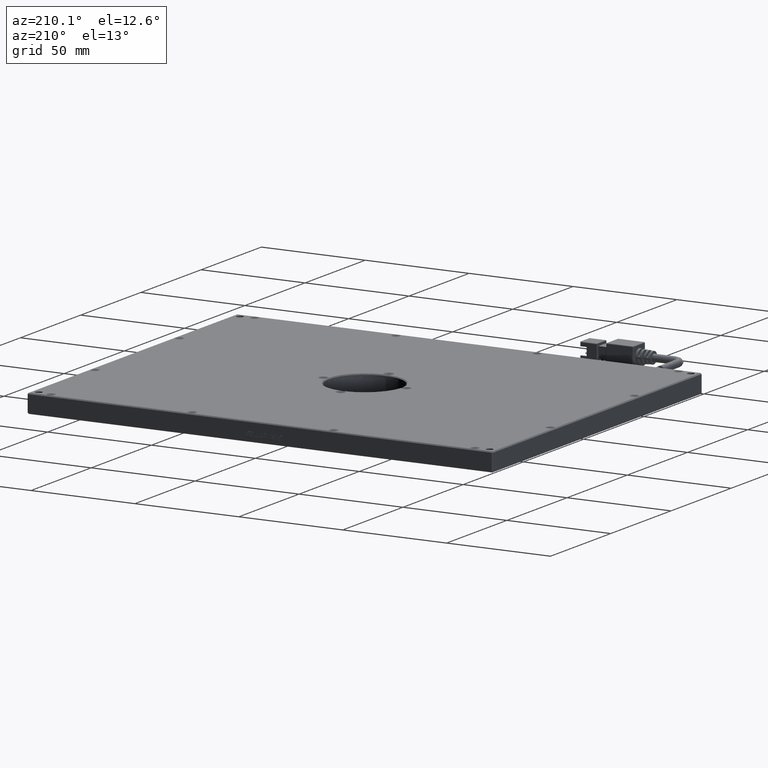
[diagram: clean part render]
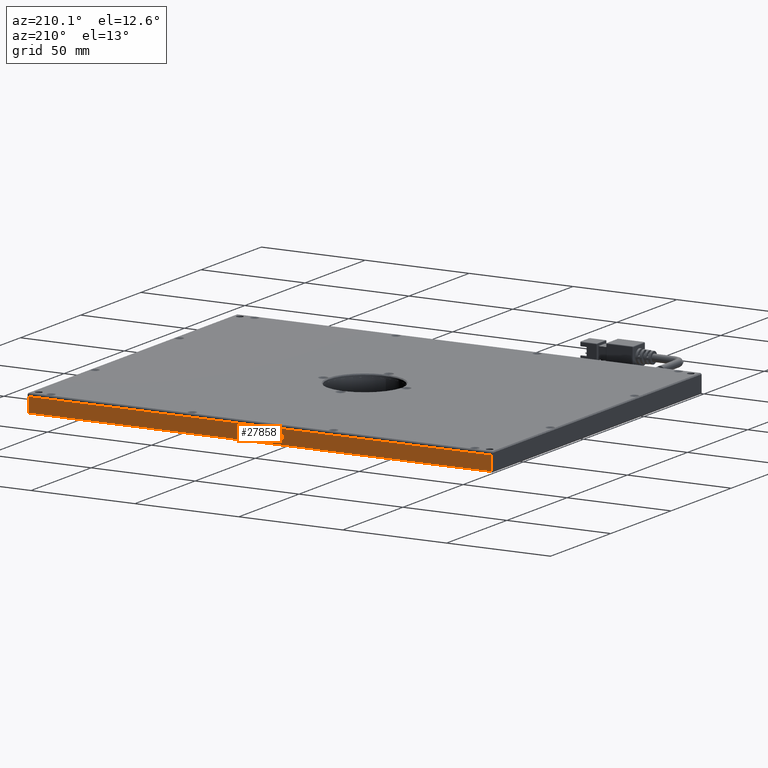
[diagram: same view with one face highlighted and labeled with its STEP entity id]
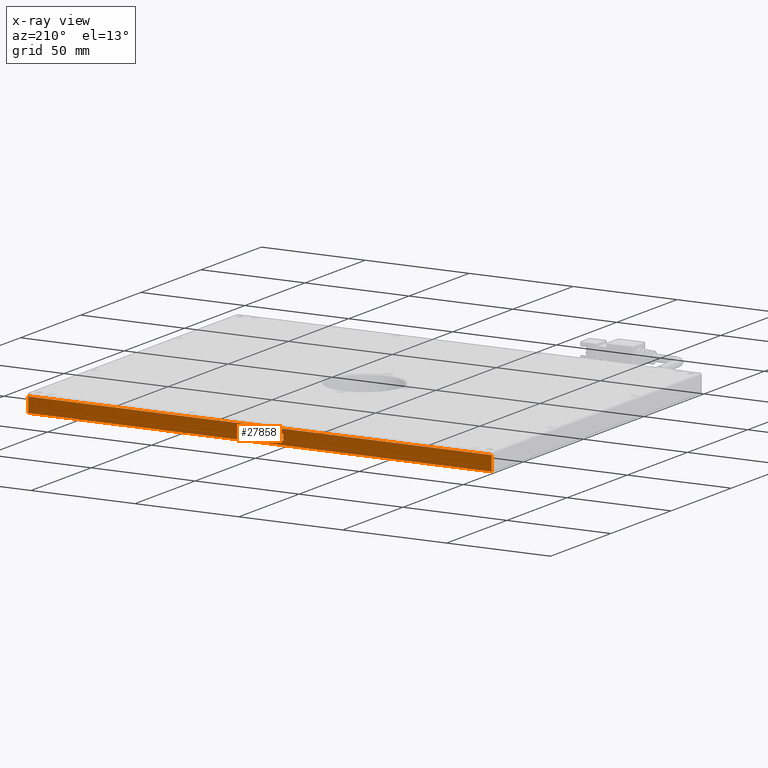
[diagram: x-ray of the same camera — body ghosted, the highlighted face saturated]
A machine part, auxiliary view. The second image highlights one B-rep face of the part: STEP entity #27858.
The next image is the same camera in x-ray: the body ghosted, the highlighted face saturated — about 0% of this face is hidden behind the body in this view.
In plain terms, the highlighted planar face has unit normal (0, -1, 0).
Its self-contained STEP definition (entity closure, byte-faithful):
#32 = ORIENTED_EDGE ( 'NONE', *, *, #49104, .F. ) ;
#81 = CARTESIAN_POINT ( 'NONE',  ( 8.478474851270956200, 92.19253164556964500, 0.5238957003299250500 ) ) ;
#99 = DIRECTION ( 'NONE',  ( -0.0000000000000000000, -0.0000000000000000000, 1.000000000000000000 ) ) ;
#148 = VERTEX_POINT ( 'NONE', #9354 ) ;
#374 = B_SPLINE_CURVE_WITH_KNOTS ( 'NONE', 3,
 ( #5275, #12519, #9017, #4780 ),
 .UNSPECIFIED., .F., .F.,
 ( 4, 4 ),
 ( 5.000000000000000000, 6.000000000000000000 ),
 .UNSPECIFIED. ) ;
#385 = VECTOR ( 'NONE', #2928, 1000.000000000000000 ) ;
#642 = EDGE_CURVE ( 'NONE', #46758, #26991, #10664, .T. ) ;
#790 = ORIENTED_EDGE ( 'NONE', *, *, #44181, .F. ) ;
#830 = ORIENTED_EDGE ( 'NONE', *, *, #47695, .F. ) ;
#935 = ORIENTED_EDGE ( 'NONE', *, *, #5352, .F. ) ;
#947 = VERTEX_POINT ( 'NONE', #26903 ) ;
#1024 = CARTESIAN_POINT ( 'NONE',  ( -2.218712817739332300, 92.19253164556964500, 0.6634305840508654100 ) ) ;
#1029 = CARTESIAN_POINT ( 'NONE',  ( -6.567792430414609600, 92.19253164556964500, 1.506495181387633300 ) ) ;
#1091 = EDGE_CURVE ( 'NONE', #20305, #45094, #3220, .T. ) ;
#1308 = CARTESIAN_POINT ( 'NONE',  ( 8.096646836127707300, 92.19253164556964500, -0.6854066252514655600 ) ) ;
#1559 = EDGE_CURVE ( 'NONE', #11655, #34055, #29220, .T. ) ;
#1579 = CARTESIAN_POINT ( 'NONE',  ( 5.415143320713856000, 92.19253164556964500, 0.05877942126015969100 ) ) ;
#1603 = CARTESIAN_POINT ( 'NONE',  ( 8.087993510005386400, 92.19253164556964500, -0.9737787182747225100 ) ) ;
#1678 = VECTOR ( 'NONE', #33443, 1000.000000000000000 ) ;
#1759 = VECTOR ( 'NONE', #31230, 1000.000000000000000 ) ;
#1848 = AXIS2_PLACEMENT_3D ( 'NONE', #23793, #12338, #19747 ) ;
#1900 = CARTESIAN_POINT ( 'NONE',  ( -4.272579772850226800, 92.19253164556964500, -0.5923833694375076900 ) ) ;
#2258 = CARTESIAN_POINT ( 'NONE',  ( -4.590643591130316300, 92.19253164556964500, 1.091337560795046200 ) ) ;
#2290 = DIRECTION ( 'NONE',  ( 1.000000000000000000, -0.0000000000000000000, -0.0000000000000000000 ) ) ;
#2466 = CARTESIAN_POINT ( 'NONE',  ( 6.326338561384536900, 92.19253164556964500, 1.091337560795046200 ) ) ;
#2478 = ORIENTED_EDGE ( 'NONE', *, *, #21874, .F. ) ;
#2522 = EDGE_CURVE ( 'NONE', #39317, #49320, #10991, .T. ) ;
#2541 = CARTESIAN_POINT ( 'NONE',  ( -0.9285559762033379600, 92.19253164556964500, 0.06808174684155757200 ) ) ;
#2593 = EDGE_CURVE ( 'NONE', #36190, #22194, #26751, .T. ) ;
#2603 = VERTEX_POINT ( 'NONE', #30244 ) ;
#2699 = CARTESIAN_POINT ( 'NONE',  ( -0.9285559762033379600, 92.19253164556964500, 0.06808174684155757200 ) ) ;
#2704 = VERTEX_POINT ( 'NONE', #26885 ) ;
#2734 = CARTESIAN_POINT ( 'NONE',  ( 4.764250946457549300, 92.19253164556964500, 1.054128258469461600 ) ) ;
#2854 = DIRECTION ( 'NONE',  ( -0.0000000000000000000, -0.0000000000000000000, -1.000000000000000000 ) ) ;
#2868 = DIRECTION ( 'NONE',  ( -0.0000000000000000000, -0.0000000000000000000, 1.000000000000000000 ) ) ;
#2899 = CARTESIAN_POINT ( 'NONE',  ( 8.851649540292051200, 92.19253164556964500, -0.3505229043212357800 ) ) ;
#2914 = VERTEX_POINT ( 'NONE', #31253 ) ;
#2928 = DIRECTION ( 'NONE',  ( 1.000000000000000000, -0.0000000000000000000, -0.0000000000000000000 ) ) ;
#2961 = DIRECTION ( 'NONE',  ( -0.0000000000000000000, -0.0000000000000000000, -1.000000000000000000 ) ) ;
#3028 = CARTESIAN_POINT ( 'NONE',  ( 5.415143320713856000, 92.19253164556964500, 0.05877942126015969100 ) ) ;
#3099 = VERTEX_POINT ( 'NONE', #2466 ) ;
#3174 = ORIENTED_EDGE ( 'NONE', *, *, #7609, .F. ) ;
#3177 = EDGE_CURVE ( 'NONE', #34457, #8996, #31439, .T. ) ;
#3220 = B_SPLINE_CURVE_WITH_KNOTS ( 'NONE', 3,
 ( #28874, #28710, #9586, #40857 ),
 .UNSPECIFIED., .F., .F.,
 ( 4, 4 ),
 ( 11.00000000000000000, 12.00000000000000000 ),
 .UNSPECIFIED. ) ;
#3318 = VECTOR ( 'NONE', #35313, 1000.000000000000000 ) ;
#3348 = CARTESIAN_POINT ( 'NONE',  ( -4.182801514332146200, 92.19253164556964500, -0.9737787182747225100 ) ) ;
#3365 = CARTESIAN_POINT ( 'NONE',  ( 6.421795565170418400, 92.19253164556964500, 0.8215701189345876500 ) ) ;
#3370 = FACE_BOUND ( 'NONE', #27323, .T. ) ;
#3397 = CARTESIAN_POINT ( 'NONE',  ( 7.908599242833935800, 92.19253164556964500, -0.1737787182747177700 ) ) ;
#3463 = CARTESIAN_POINT ( 'NONE',  ( -1.813683071930805000, 92.19253164556964500, -0.9458717415305357700 ) ) ;
#3473 = DIRECTION ( 'NONE',  ( -1.000000000000000000, -0.0000000000000000000, 0.0000000000000000000 ) ) ;
#3507 = CARTESIAN_POINT ( 'NONE',  ( 8.472633856138500600, 92.19253164556964500, 0.7285468631206296600 ) ) ;
#3522 = VECTOR ( 'NONE', #10950, 1000.000000000000000 ) ;
#3600 = CARTESIAN_POINT ( 'NONE',  ( -3.766252028123362500, 92.19253164556964500, -0.09936011362356253500 ) ) ;
#3608 = EDGE_CURVE ( 'NONE', #48546, #27872, #38408, .T. ) ;
#3609 = EDGE_CURVE ( 'NONE', #17077, #28659, #14487, .T. ) ;
#3611 = DIRECTION ( 'NONE',  ( -1.000000000000000000, -0.0000000000000000000, -0.0000000000000000000 ) ) ;
#3657 = CARTESIAN_POINT ( 'NONE',  ( 7.804434829637663100, 92.19253164556964500, -0.5984947810113378000 ) ) ;
#3661 = CARTESIAN_POINT ( 'NONE',  ( -6.567792430414609600, 92.19253164556964500, 1.506495181387633300 ) ) ;
#3739 = ORIENTED_EDGE ( 'NONE', *, *, #9049, .F. ) ;
#3814 = VECTOR ( 'NONE', #44176, 1000.000000000000000 ) ;
#3887 = B_SPLINE_CURVE_WITH_KNOTS ( 'NONE', 3,
 ( #7494, #4145, #12040, #15595 ),
 .UNSPECIFIED., .F., .F.,
 ( 4, 4 ),
 ( 4.000000000000000000, 5.000000000000000000 ),
 .UNSPECIFIED. ) ;
#3893 = CARTESIAN_POINT ( 'NONE',  ( 3.905137912385059400, 92.19253164556964500, -0.6668019740886768100 ) ) ;
#3913 = ORIENTED_EDGE ( 'NONE', *, *, #38065, .F. ) ;
#3921 = CARTESIAN_POINT ( 'NONE',  ( 8.649053542455320100, 92.19253164556964500, -0.03105292054621320400 ) ) ;
#3950 = DIRECTION ( 'NONE',  ( 1.000000000000000000, -0.0000000000000000000, -0.0000000000000000000 ) ) ;
#3986 = VECTOR ( 'NONE', #2868, 1000.000000000000000 ) ;
#4106 = DIRECTION ( 'NONE',  ( -0.0000000000000000000, -0.0000000000000000000, 1.000000000000000000 ) ) ;
#4145 = CARTESIAN_POINT ( 'NONE',  ( 7.344510546241189700, 92.19253164556964500, -0.09005778804216466000 ) ) ;
#4170 = CARTESIAN_POINT ( 'NONE',  ( 8.903731746890187500, 92.19253164556964500, 0.4959887235857453100 ) ) ;
#4231 = EDGE_CURVE ( 'NONE', #37408, #5479, #26097, .T. ) ;
#4271 = DIRECTION ( 'NONE',  ( -1.000000000000000000, -0.0000000000000000000, -0.0000000000000000000 ) ) ;
#4299 = LINE ( 'NONE', #19397, #46449 ) ;
#4329 = CARTESIAN_POINT ( 'NONE',  ( 7.801622498647908800, 92.19253164556964500, 0.8247610329421484200 ) ) ;
#4422 = CARTESIAN_POINT ( 'NONE',  ( -4.581990265008162300, 92.19253164556964500, 0.8215701189345876500 ) ) ;
#4430 = CARTESIAN_POINT ( 'NONE',  ( 0.0000000000000000000, 92.19253164556964500, 1.091337560795046200 ) ) ;
#4709 = LINE ( 'NONE', #32553, #39630 ) ;
#4722 = CARTESIAN_POINT ( 'NONE',  ( 6.326338561384536900, 92.19253164556964500, 1.091337560795046200 ) ) ;
#4780 = CARTESIAN_POINT ( 'NONE',  ( 7.385073012439180600, 92.19253164556964500, -0.4249415089723944700 ) ) ;
#4861 = CARTESIAN_POINT ( 'NONE',  ( -2.938994050838306100, 92.19253164556964500, 0.8215701189345876500 ) ) ;
#5065 = CARTESIAN_POINT ( 'NONE',  ( 8.140021633315342300, 92.19253164556964500, 1.091337560795046200 ) ) ;
#5226 = CARTESIAN_POINT ( 'NONE',  ( -6.024010237157762400, 92.19253164556964500, 1.321615754439154200 ) ) ;
#5275 = CARTESIAN_POINT ( 'NONE',  ( 8.087993510005386400, 92.19253164556964500, -0.9737787182747225100 ) ) ;
#5352 = EDGE_CURVE ( 'NONE', #17165, #21293, #47219, .T. ) ;
#5402 = EDGE_CURVE ( 'NONE', #20635, #35526, #48408, .T. ) ;
#5479 = VERTEX_POINT ( 'NONE', #21359 ) ;
#5502 = CARTESIAN_POINT ( 'NONE',  ( -2.664142779880973600, 92.19253164556964500, 1.091337560795046200 ) ) ;
#5602 = CARTESIAN_POINT ( 'NONE',  ( -3.766252028123362500, 92.19253164556964500, 0.6448259328880696600 ) ) ;
#5609 = CARTESIAN_POINT ( 'NONE',  ( 7.089994591671199900, 92.19253164556964500, 0.7564538398648164000 ) ) ;
#5781 = CARTESIAN_POINT ( 'NONE',  ( -4.712168739859301100, 92.19253164556964500, 0.1797096538183043100 ) ) ;
#5842 = ORIENTED_EDGE ( 'NONE', *, *, #642, .F. ) ;
#5966 = EDGE_CURVE ( 'NONE', #10433, #2704, #6418, .T. ) ;
#5972 = CARTESIAN_POINT ( 'NONE',  ( -4.712168739859301100, 92.19253164556964500, -0.09936011362356253500 ) ) ;
#6101 = B_SPLINE_CURVE_WITH_KNOTS ( 'NONE', 3,
 ( #1579, #24631, #48000, #9181 ),
 .UNSPECIFIED., .F., .F.,
 ( 4, 4 ),
 ( 7.000000000000000000, 8.000000000000000000 ),
 .UNSPECIFIED. ) ;
#6175 = CARTESIAN_POINT ( 'NONE',  ( -5.545267712276979600, 92.19253164556964500, 0.04947709567876181600 ) ) ;
#6418 = B_SPLINE_CURVE_WITH_KNOTS ( 'NONE', 3,
 ( #17152, #32631, #16657, #39710 ),
 .UNSPECIFIED., .F., .F.,
 ( 4, 4 ),
 ( 8.000000000000000000, 9.000000000000000000 ),
 .UNSPECIFIED. ) ;
#6443 = B_SPLINE_CURVE_WITH_KNOTS ( 'NONE', 3,
 ( #42499, #34579, #23108, #27139 ),
 .UNSPECIFIED., .F., .F.,
 ( 4, 4 ),
 ( 6.000000000000000000, 7.000000000000000000 ),
 .UNSPECIFIED. ) ;
#6728 = CARTESIAN_POINT ( 'NONE',  ( 7.089994591671199900, 92.19253164556964500, 0.3750584910276006900 ) ) ;
#6752 = B_SPLINE_CURVE_WITH_KNOTS ( 'NONE', 3,
 ( #1029, #35882, #5226, #40246 ),
 .UNSPECIFIED., .F., .F.,
 ( 4, 4 ),
 ( 5.000000000000000000, 6.000000000000000000 ),
 .UNSPECIFIED. ) ;
#6800 = CARTESIAN_POINT ( 'NONE',  ( 7.089994591671199900, 92.19253164556964500, 0.3750584910276006900 ) ) ;
#6872 = CARTESIAN_POINT ( 'NONE',  ( -3.774959437533864600, 92.19253164556964500, -0.3877322066468099100 ) ) ;
#7027 = ORIENTED_EDGE ( 'NONE', *, *, #7429, .F. ) ;
#7071 = ORIENTED_EDGE ( 'NONE', *, *, #24998, .F. ) ;
#7166 = DIRECTION ( 'NONE',  ( -0.0000000000000000000, -0.0000000000000000000, -1.000000000000000000 ) ) ;
#7256 = VERTEX_POINT ( 'NONE', #10874 ) ;
#7397 = CARTESIAN_POINT ( 'NONE',  ( 8.079286100594940100, 92.19253164556964500, 0.8308724445159785300 ) ) ;
#7429 = EDGE_CURVE ( 'NONE', #22521, #47711, #49217, .T. ) ;
#7455 = ORIENTED_EDGE ( 'NONE', *, *, #5402, .F. ) ;
#7461 = CARTESIAN_POINT ( 'NONE',  ( -6.024010237157762400, 92.19253164556964500, -0.9324411337523945700 ) ) ;
#7494 = CARTESIAN_POINT ( 'NONE',  ( 7.385073012439180600, 92.19253164556964500, -0.4249415089723944700 ) ) ;
#7497 = ORIENTED_EDGE ( 'NONE', *, *, #26940, .F. ) ;
#7519 = VECTOR ( 'NONE', #7166, 1000.000000000000000 ) ;
#7609 = EDGE_CURVE ( 'NONE', #11195, #44262, #15166, .T. ) ;
#7671 = DIRECTION ( 'NONE',  ( -0.0000000000000000000, -0.0000000000000000000, 1.000000000000000000 ) ) ;
#7701 = ORIENTED_EDGE ( 'NONE', *, *, #2593, .F. ) ;
#7947 = CARTESIAN_POINT ( 'NONE',  ( 5.172147106544011700, 92.19253164556964500, -0.9458717415305357700 ) ) ;
#7997 = CARTESIAN_POINT ( 'NONE',  ( -8.462919309729644000, 92.19253164556964500, 1.506495181387633300 ) ) ;
#8033 = ORIENTED_EDGE ( 'NONE', *, *, #39064, .F. ) ;
#8072 = LINE ( 'NONE', #3463, #47784 ) ;
#8079 = ORIENTED_EDGE ( 'NONE', *, *, #14480, .F. ) ;
#8126 = VERTEX_POINT ( 'NONE', #3893 ) ;
#8160 = ORIENTED_EDGE ( 'NONE', *, *, #41862, .F. ) ;
#8325 = CARTESIAN_POINT ( 'NONE',  ( 7.538290968090888300, 92.19253164556964500, 0.9858210653921296600 ) ) ;
#8340 = CARTESIAN_POINT ( 'NONE',  ( 8.359870200108254300, 92.19253164556964500, 0.2603748782639475100 ) ) ;
#8367 = EDGE_CURVE ( 'NONE', #27872, #17165, #33115, .T. ) ;
#8406 = VECTOR ( 'NONE', #2290, 1000.000000000000000 ) ;
#8415 = ORIENTED_EDGE ( 'NONE', *, *, #36808, .F. ) ;
#8595 = LINE ( 'NONE', #2734, #22999 ) ;
#8600 = VECTOR ( 'NONE', #43615, 1000.000000000000000 ) ;
#8677 = EDGE_CURVE ( 'NONE', #49353, #42921, #11963, .T. ) ;
#8744 = CARTESIAN_POINT ( 'NONE',  ( 7.341644131963310100, 92.19253164556964500, 0.7192445375392387800 ) ) ;
#8746 = VECTOR ( 'NONE', #7671, 1000.000000000000000 ) ;
#8996 = VERTEX_POINT ( 'NONE', #5972 ) ;
#9017 = CARTESIAN_POINT ( 'NONE',  ( 7.402433747971892700, 92.19253164556964500, -0.7845412926392433300 ) ) ;
#9037 = CARTESIAN_POINT ( 'NONE',  ( 4.521254732287705000, 92.19253164556964500, -0.9458717415305357700 ) ) ;
#9049 = EDGE_CURVE ( 'NONE', #22162, #17077, #33538, .T. ) ;
#9163 = CARTESIAN_POINT ( 'NONE',  ( 1.188912925905893900, 92.19253164556964500, 1.054128258469461600 ) ) ;
#9168 = CARTESIAN_POINT ( 'NONE',  ( -5.128718226068251300, 92.19253164556964500, 0.05877942126015969100 ) ) ;
#9181 = CARTESIAN_POINT ( 'NONE',  ( 6.326338561384536900, 92.19253164556964500, 1.091337560795046200 ) ) ;
#9354 = CARTESIAN_POINT ( 'NONE',  ( -0.9285559762033379600, 92.19253164556964500, 0.06808174684155757200 ) ) ;
#9525 = VECTOR ( 'NONE', #42463, 1000.000000000000000 ) ;
#9586 = CARTESIAN_POINT ( 'NONE',  ( -5.203948080043263100, 92.19253164556964500, 1.066486289837769400 ) ) ;
#9655 = ORIENTED_EDGE ( 'NONE', *, *, #40404, .F. ) ;
#9721 = CARTESIAN_POINT ( 'NONE',  ( 7.133423472147015300, 92.19253164556964500, -0.3133136019956581600 ) ) ;
#9734 = CARTESIAN_POINT ( 'NONE',  ( 0.0000000000000000000, 92.19253164556964500, 1.091337560795046200 ) ) ;
#9751 = CARTESIAN_POINT ( 'NONE',  ( -3.497241752298485600, 92.19253164556964500, 0.2076166305624840600 ) ) ;
#9764 = CARTESIAN_POINT ( 'NONE',  ( 2.672850189291531300, 92.19253164556964500, -0.2947089508328624200 ) ) ;
#9925 = VERTEX_POINT ( 'NONE', #33668 ) ;
#9964 = CARTESIAN_POINT ( 'NONE',  ( -0.8996755002704248700, 92.19253164556964500, -0.6016856950189055600 ) ) ;
#10002 = CARTESIAN_POINT ( 'NONE',  ( -4.616711736073531500, 92.19253164556964500, -0.6947089508328565500 ) ) ;
#10067 = CARTESIAN_POINT ( 'NONE',  ( -4.156787452677113100, 92.19253164556964500, 0.5145933747485271800 ) ) ;
#10113 = B_SPLINE_CURVE_WITH_KNOTS ( 'NONE', 3,
 ( #18815, #3507, #30407, #22848 ),
 .UNSPECIFIED., .F., .F.,
 ( 4, 4 ),
 ( 2.000000000000000000, 3.000000000000000000 ),
 .UNSPECIFIED. ) ;
#10175 = CARTESIAN_POINT ( 'NONE',  ( 5.840346133044905100, 92.19253164556964500, 0.07738407242295544700 ) ) ;
#10336 = B_SPLINE_CURVE_WITH_KNOTS ( 'NONE', 3,
 ( #43319, #27595, #35381, #23934 ),
 .UNSPECIFIED., .F., .F.,
 ( 4, 4 ),
 ( 8.000000000000000000, 9.000000000000000000 ),
 .UNSPECIFIED. ) ;
#10342 = ORIENTED_EDGE ( 'NONE', *, *, #26323, .F. ) ;
#10433 = VERTEX_POINT ( 'NONE', #37635 ) ;
#10532 = CARTESIAN_POINT ( 'NONE',  ( 3.905137912385059400, 92.19253164556964500, 1.054128258469461600 ) ) ;
#10664 = B_SPLINE_CURVE_WITH_KNOTS ( 'NONE', 3,
 ( #39394, #1024, #31806, #39227 ),
 .UNSPECIFIED., .F., .F.,
 ( 4, 4 ),
 ( 4.000000000000000000, 5.000000000000000000 ),
 .UNSPECIFIED. ) ;
#10874 = CARTESIAN_POINT ( 'NONE',  ( -3.497241752298485600, 92.19253164556964500, 0.2076166305624840600 ) ) ;
#10950 = DIRECTION ( 'NONE',  ( -0.0000000000000000000, -0.0000000000000000000, 1.000000000000000000 ) ) ;
#10991 = B_SPLINE_CURVE_WITH_KNOTS ( 'NONE', 3,
 ( #14445, #18161, #41730, #14780 ),
 .UNSPECIFIED., .F., .F.,
 ( 4, 4 ),
 ( 3.000000000000000000, 4.000000000000000000 ),
 .UNSPECIFIED. ) ;
#11195 = VERTEX_POINT ( 'NONE', #22384 ) ;
#11210 = EDGE_CURVE ( 'NONE', #2603, #23263, #8595, .T. ) ;
#11305 = VERTEX_POINT ( 'NONE', #22571 ) ;
#11319 = CARTESIAN_POINT ( 'NONE',  ( -8.462919309729644000, 92.19253164556964500, 1.506495181387633300 ) ) ;
#11370 = CARTESIAN_POINT ( 'NONE',  ( -4.156787452677113100, 92.19253164556964500, 0.5145933747485271800 ) ) ;
#11375 = CARTESIAN_POINT ( 'NONE',  ( 6.334991887506690800, 92.19253164556964500, -0.6854066252514655600 ) ) ;
#11421 = CARTESIAN_POINT ( 'NONE',  ( 8.096646836127707300, 92.19253164556964500, -0.6854066252514655600 ) ) ;
#11582 = ORIENTED_EDGE ( 'NONE', *, *, #32311, .F. ) ;
#11596 = ORIENTED_EDGE ( 'NONE', *, *, #40406, .F. ) ;
#11638 = CARTESIAN_POINT ( 'NONE',  ( -4.156787452677113100, 92.19253164556964500, 0.1797096538183043100 ) ) ;
#11655 = VERTEX_POINT ( 'NONE', #21816 ) ;
#11841 = FACE_OUTER_BOUND ( 'NONE', #15407, .T. ) ;
#11842 = VECTOR ( 'NONE', #2854, 1000.000000000000000 ) ;
#11890 = CARTESIAN_POINT ( 'NONE',  ( -6.024010237157762400, 92.19253164556964500, 0.9626857934374446500 ) ) ;
#11906 = EDGE_LOOP ( 'NONE', ( #8415, #24445, #32102, #17050, #17116, #3174, #12767, #43874, #11596, #17573, #7497, #7071, #34843, #13404 ) ) ;
#11954 = CARTESIAN_POINT ( 'NONE',  ( -3.080692266089757300, 92.19253164556964500, 0.3099422119578294500 ) ) ;
#11963 = LINE ( 'NONE', #3661, #46294 ) ;
#12040 = CARTESIAN_POINT ( 'NONE',  ( 7.590319091400676400, 92.19253164556964500, 0.1238957003299309400 ) ) ;
#12183 = EDGE_CURVE ( 'NONE', #22192, #20809, #24009, .T. ) ;
#12312 = VECTOR ( 'NONE', #12680, 1000.000000000000000 ) ;
#12338 = DIRECTION ( 'NONE',  ( 0.0000000000000000000, -1.000000000000000000, 0.0000000000000000000 ) ) ;
#12370 = EDGE_CURVE ( 'NONE', #20482, #11195, #3887, .T. ) ;
#12403 = FACE_BOUND ( 'NONE', #46533, .T. ) ;
#12442 = CARTESIAN_POINT ( 'NONE',  ( -2.655489453758819200, 92.19253164556964500, 0.8215701189345876500 ) ) ;
#12512 = EDGE_CURVE ( 'NONE', #45138, #49738, #41395, .T. ) ;
#12519 = CARTESIAN_POINT ( 'NONE',  ( 7.636722552731233900, 92.19253164556964500, -0.9675320984802310300 ) ) ;
#12591 = LINE ( 'NONE', #21764, #8406 ) ;
#12680 = DIRECTION ( 'NONE',  ( -0.0000000000000000000, -0.0000000000000000000, 1.000000000000000000 ) ) ;
#12767 = ORIENTED_EDGE ( 'NONE', *, *, #12370, .F. ) ;
#12781 = CARTESIAN_POINT ( 'NONE',  ( 7.133423472147015300, 92.19253164556964500, -0.3133136019956581600 ) ) ;
#12833 = VERTEX_POINT ( 'NONE', #37982 ) ;
#12842 = LINE ( 'NONE', #35551, #29649 ) ;
#12993 = EDGE_CURVE ( 'NONE', #22896, #19810, #47879, .T. ) ;
#13169 = CARTESIAN_POINT ( 'NONE',  ( -4.616711736073531500, 92.19253164556964500, -0.9737787182747225100 ) ) ;
#13404 = ORIENTED_EDGE ( 'NONE', *, *, #30514, .F. ) ;
#13514 = EDGE_LOOP ( 'NONE', ( #23705, #18861, #47211, #39491, #11582, #42601, #5842, #37199, #23170, #30851 ) ) ;
#13604 = FACE_BOUND ( 'NONE', #34037, .T. ) ;
#13681 = CARTESIAN_POINT ( 'NONE',  ( 2.678528934559110100, 92.19253164556964500, -0.7287273391508699600 ) ) ;
#13690 = DIRECTION ( 'NONE',  ( 1.000000000000000000, -0.0000000000000000000, -0.0000000000000000000 ) ) ;
#13726 = EDGE_CURVE ( 'NONE', #22194, #20305, #40942, .T. ) ;
#13743 = VERTEX_POINT ( 'NONE', #24104 ) ;
#13926 = EDGE_CURVE ( 'NONE', #35187, #29539, #24022, .T. ) ;
#14010 = ORIENTED_EDGE ( 'NONE', *, *, #45074, .F. ) ;
#14011 = CARTESIAN_POINT ( 'NONE',  ( 8.087993510005386400, 92.19253164556964500, -0.9737787182747225100 ) ) ;
#14083 = CARTESIAN_POINT ( 'NONE',  ( -6.024010237157762400, 92.19253164556964500, -0.9324411337523945700 ) ) ;
#14102 = ORIENTED_EDGE ( 'NONE', *, *, #30934, .F. ) ;
#14168 = CARTESIAN_POINT ( 'NONE',  ( -4.616711736073531500, 92.19253164556964500, -0.9737787182747225100 ) ) ;
#14203 = VECTOR ( 'NONE', #37489, 1000.000000000000000 ) ;
#14297 = ORIENTED_EDGE ( 'NONE', *, *, #2522, .F. ) ;
#14330 = CARTESIAN_POINT ( 'NONE',  ( -109.1770253164556800, 92.19253164556964500, 3.750000000000000000 ) ) ;
#14445 = CARTESIAN_POINT ( 'NONE',  ( 0.9285559762032824500, 92.19253164556964500, 0.06808174684155757200 ) ) ;
#14480 = EDGE_CURVE ( 'NONE', #5479, #9925, #20242, .T. ) ;
#14487 = B_SPLINE_CURVE_WITH_KNOTS ( 'NONE', 3,
 ( #10002, #47996, #1900, #28949 ),
 .UNSPECIFIED., .F., .F.,
 ( 4, 4 ),
 ( 1.000000000000000000, 2.000000000000000000 ),
 .UNSPECIFIED. ) ;
#14636 = CARTESIAN_POINT ( 'NONE',  ( -109.1770253164557100, 92.19253164556964500, -3.250000000000002200 ) ) ;
#14714 = VECTOR ( 'NONE', #47167, 1000.000000000000000 ) ;
#14780 = CARTESIAN_POINT ( 'NONE',  ( 0.0000000000000000000, 92.19253164556964500, -0.9737787182747225100 ) ) ;
#14891 = VERTEX_POINT ( 'NONE', #5781 ) ;
#14913 = CARTESIAN_POINT ( 'NONE',  ( 2.322974683544309900, 92.19253164556964500, 3.750000000000000000 ) ) ;
#15082 = EDGE_CURVE ( 'NONE', #27280, #46758, #21951, .T. ) ;
#15166 = B_SPLINE_CURVE_WITH_KNOTS ( 'NONE', 3,
 ( #19433, #8340, #46209, #81 ),
 .UNSPECIFIED., .F., .F.,
 ( 4, 4 ),
 ( 3.000000000000000000, 4.000000000000000000 ),
 .UNSPECIFIED. ) ;
#15183 = CARTESIAN_POINT ( 'NONE',  ( 113.8229746835443400, 92.19253164556964500, -3.250000000000001300 ) ) ;
#15260 = CARTESIAN_POINT ( 'NONE',  ( 8.654894537587887600, 92.19253164556964500, 1.091337560795046200 ) ) ;
#15407 = EDGE_LOOP ( 'NONE', ( #28007, #48720, #26640, #20662 ) ) ;
#15453 = DIRECTION ( 'NONE',  ( 1.000000000000000000, -0.0000000000000000000, -0.0000000000000000000 ) ) ;
#15520 = ORIENTED_EDGE ( 'NONE', *, *, #3608, .F. ) ;
#15595 = CARTESIAN_POINT ( 'NONE',  ( 8.122714981070867400, 92.19253164556964500, 0.2169189561438819300 ) ) ;
#15621 = CARTESIAN_POINT ( 'NONE',  ( 6.537479718766836500, 92.19253164556964500, -0.6854066252514655600 ) ) ;
#15744 = CARTESIAN_POINT ( 'NONE',  ( 3.488588426176331100, 92.19253164556964500, 1.054128258469461600 ) ) ;
#15839 = ORIENTED_EDGE ( 'NONE', *, *, #28488, .F. ) ;
#16097 = VERTEX_POINT ( 'NONE', #17287 ) ;
#16114 = VECTOR ( 'NONE', #21706, 1000.000000000000000 ) ;
#16164 = CARTESIAN_POINT ( 'NONE',  ( 5.840346133044905100, 92.19253164556964500, 0.07738407242295544700 ) ) ;
#16320 = CARTESIAN_POINT ( 'NONE',  ( -9.006750428706244100, 92.19253164556964500, -0.8236901285447817400 ) ) ;
#16459 = LINE ( 'NONE', #31647, #34529 ) ;
#16584 = DIRECTION ( 'NONE',  ( -0.0000000000000000000, -0.0000000000000000000, -1.000000000000000000 ) ) ;
#16657 = CARTESIAN_POINT ( 'NONE',  ( -1.784802595997780900, 92.19253164556964500, 0.8215701189345876500 ) ) ;
#17021 = VERTEX_POINT ( 'NONE', #15183 ) ;
#17050 = ORIENTED_EDGE ( 'NONE', *, *, #41248, .F. ) ;
#17077 = VERTEX_POINT ( 'NONE', #34713 ) ;
#17100 = CARTESIAN_POINT ( 'NONE',  ( 7.341644131963310100, 92.19253164556964500, 0.3657561654462097600 ) ) ;
#17116 = ORIENTED_EDGE ( 'NONE', *, *, #21271, .F. ) ;
#17123 = EDGE_CURVE ( 'NONE', #28659, #36190, #16459, .T. ) ;
#17152 = CARTESIAN_POINT ( 'NONE',  ( -2.664142779880973600, 92.19253164556964500, 1.091337560795046200 ) ) ;
#17164 = EDGE_CURVE ( 'NONE', #14891, #22521, #12842, .T. ) ;
#17165 = VERTEX_POINT ( 'NONE', #46804 ) ;
#17178 = EDGE_CURVE ( 'NONE', #40728, #47426, #10336, .T. ) ;
#17215 = CARTESIAN_POINT ( 'NONE',  ( 2.452947539210326200, 92.19253164556964500, -0.9458717415305357700 ) ) ;
#17226 = FACE_BOUND ( 'NONE', #36625, .T. ) ;
#17231 = EDGE_CURVE ( 'NONE', #42921, #32894, #6752, .T. ) ;
#17273 = EDGE_CURVE ( 'NONE', #39712, #22896, #27218, .T. ) ;
#17287 = CARTESIAN_POINT ( 'NONE',  ( 6.421795565170418400, 92.19253164556964500, 0.8215701189345876500 ) ) ;
#17451 = CARTESIAN_POINT ( 'NONE',  ( -2.655489453758819200, 92.19253164556964500, 0.8215701189345876500 ) ) ;
#17481 = B_SPLINE_CURVE_WITH_KNOTS ( 'NONE', 3,
 ( #1308, #31942, #43608, #24217 ),
 .UNSPECIFIED., .F., .F.,
 ( 4, 4 ),
 ( 8.000000000000000000, 9.000000000000000000 ),
 .UNSPECIFIED. ) ;
#17573 = ORIENTED_EDGE ( 'NONE', *, *, #34313, .F. ) ;
#17624 = ORIENTED_EDGE ( 'NONE', *, *, #26159, .F. ) ;
#17711 = ORIENTED_EDGE ( 'NONE', *, *, #34716, .F. ) ;
#17721 = CARTESIAN_POINT ( 'NONE',  ( -3.080692266089757300, 92.19253164556964500, -0.9458717415305357700 ) ) ;
#17764 = DIRECTION ( 'NONE',  ( -0.0000000000000000000, -0.0000000000000000000, 1.000000000000000000 ) ) ;
#17974 = ORIENTED_EDGE ( 'NONE', *, *, #43749, .F. ) ;
#18161 = CARTESIAN_POINT ( 'NONE',  ( 0.8879935100055136300, 92.19253164556964500, -0.5891924554299399200 ) ) ;
#18214 = DIRECTION ( 'NONE',  ( -0.0000000000000000000, -0.0000000000000000000, 1.000000000000000000 ) ) ;
#18271 = VERTEX_POINT ( 'NONE', #16164 ) ;
#18362 = CARTESIAN_POINT ( 'NONE',  ( 6.334991887506690800, 92.19253164556964500, -0.6854066252514655600 ) ) ;
#18483 = VECTOR ( 'NONE', #32051, 1000.000000000000000 ) ;
#18593 = DIRECTION ( 'NONE',  ( -0.0000000000000000000, -0.0000000000000000000, -1.000000000000000000 ) ) ;
#18688 = CARTESIAN_POINT ( 'NONE',  ( 6.010924824229269000, 92.19253164556964500, -0.6729133856624965900 ) ) ;
#18699 = CARTESIAN_POINT ( 'NONE',  ( 8.140021633315342300, 92.19253164556964500, -0.1365694159491401500 ) ) ;
#18722 = B_SPLINE_CURVE_WITH_KNOTS ( 'NONE', 3,
 ( #25454, #25621, #44810, #10175 ),
 .UNSPECIFIED., .F., .F.,
 ( 4, 4 ),
 ( 3.000000000000000000, 4.000000000000000000 ),
 .UNSPECIFIED. ) ;
#18725 = EDGE_CURVE ( 'NONE', #23936, #21877, #37737, .T. ) ;
#18815 = CARTESIAN_POINT ( 'NONE',  ( 8.478474851270956200, 92.19253164556964500, 0.5238957003299250500 ) ) ;
#18861 = ORIENTED_EDGE ( 'NONE', *, *, #28580, .F. ) ;
#19047 = LINE ( 'NONE', #37200, #3986 ) ;
#19069 = CARTESIAN_POINT ( 'NONE',  ( 8.903731746890187500, 92.19253164556964500, 0.1797096538183043100 ) ) ;
#19141 = CARTESIAN_POINT ( 'NONE',  ( 6.725527312060553000, 92.19253164556964500, -0.3133136019956581600 ) ) ;
#19237 = VECTOR ( 'NONE', #47775, 1000.000000000000000 ) ;
#19397 = CARTESIAN_POINT ( 'NONE',  ( -9.006750428706244100, 92.19253164556964500, 0.9626857934374446500 ) ) ;
#19433 = CARTESIAN_POINT ( 'NONE',  ( 8.122714981070867400, 92.19253164556964500, 0.2169189561438819300 ) ) ;
#19450 = CARTESIAN_POINT ( 'NONE',  ( 2.872471606273685500, 92.19253164556964500, -0.6668019740886768100 ) ) ;
#19476 = EDGE_CURVE ( 'NONE', #29797, #39317, #24246, .T. ) ;
#19538 = LINE ( 'NONE', #42367, #34010 ) ;
#19543 = VECTOR ( 'NONE', #16584, 1000.000000000000000 ) ;
#19639 = CARTESIAN_POINT ( 'NONE',  ( 6.667604110329850000, 92.19253164556964500, -0.5612854786857532900 ) ) ;
#19726 = B_SPLINE_CURVE_WITH_KNOTS ( 'NONE', 3,
 ( #37731, #37554, #18688, #18362 ),
 .UNSPECIFIED., .F., .F.,
 ( 4, 4 ),
 ( 2.000000000000000000, 3.000000000000000000 ),
 .UNSPECIFIED. ) ;
#19730 = CARTESIAN_POINT ( 'NONE',  ( 5.172147106544011700, 92.19253164556964500, 1.054128258469461600 ) ) ;
#19747 = DIRECTION ( 'NONE',  ( 0.0000000000000000000, -0.0000000000000000000, -1.000000000000000000 ) ) ;
#19810 = VERTEX_POINT ( 'NONE', #37548 ) ;
#19935 = CARTESIAN_POINT ( 'NONE',  ( -5.128718226068251300, 92.19253164556964500, 0.05877942126015969100 ) ) ;
#20056 = VERTEX_POINT ( 'NONE', #23400 ) ;
#20142 = ORIENTED_EDGE ( 'NONE', *, *, #12993, .F. ) ;
#20242 = LINE ( 'NONE', #37994, #14203 ) ;
#20305 = VERTEX_POINT ( 'NONE', #6175 ) ;
#20362 = CARTESIAN_POINT ( 'NONE',  ( 6.667604110329850000, 92.19253164556964500, 1.091337560795046200 ) ) ;
#20457 = CARTESIAN_POINT ( 'NONE',  ( 113.8229746835443400, 92.19253164556964500, 3.750000000000000000 ) ) ;
#20482 = VERTEX_POINT ( 'NONE', #34467 ) ;
#20581 = CARTESIAN_POINT ( 'NONE',  ( -4.581990265008162300, 92.19253164556964500, 0.8215701189345876500 ) ) ;
#20635 = VERTEX_POINT ( 'NONE', #5609 ) ;
#20662 = ORIENTED_EDGE ( 'NONE', *, *, #42274, .F. ) ;
#20722 = VERTEX_POINT ( 'NONE', #1603 ) ;
#20809 = VERTEX_POINT ( 'NONE', #14636 ) ;
#21253 = ORIENTED_EDGE ( 'NONE', *, *, #45775, .F. ) ;
#21271 = EDGE_CURVE ( 'NONE', #44262, #43435, #10113, .T. ) ;
#21293 = VERTEX_POINT ( 'NONE', #30237 ) ;
#21306 = B_SPLINE_CURVE_WITH_KNOTS ( 'NONE', 3,
 ( #6728, #45278, #46118, #3365 ),
 .UNSPECIFIED., .F., .F.,
 ( 4, 4 ),
 ( 4.000000000000000000, 5.000000000000000000 ),
 .UNSPECIFIED. ) ;
#21359 = CARTESIAN_POINT ( 'NONE',  ( -6.567792430414609600, 92.19253164556964500, -1.476245085511220800 ) ) ;
#21390 = CARTESIAN_POINT ( 'NONE',  ( -4.156787452677113100, 92.19253164556964500, 1.091337560795046200 ) ) ;
#21608 = EDGE_CURVE ( 'NONE', #21877, #43113, #46365, .T. ) ;
#21706 = DIRECTION ( 'NONE',  ( 1.000000000000000000, -0.0000000000000000000, -0.0000000000000000000 ) ) ;
#21750 = VECTOR ( 'NONE', #3611, 1000.000000000000000 ) ;
#21756 = CARTESIAN_POINT ( 'NONE',  ( -4.940778799350953300, 92.19253164556964500, -0.6636110600811090400 ) ) ;
#21759 = DIRECTION ( 'NONE',  ( 1.000000000000000000, -0.0000000000000000000, -0.0000000000000000000 ) ) ;
#21764 = CARTESIAN_POINT ( 'NONE',  ( 1.596755002704175500, 92.19253164556964500, 1.054128258469461600 ) ) ;
#21807 = CARTESIAN_POINT ( 'NONE',  ( 2.872471606273685500, 92.19253164556964500, -0.9458717415305357700 ) ) ;
#21816 = CARTESIAN_POINT ( 'NONE',  ( 3.488588426176331100, 92.19253164556964500, 1.054128258469461600 ) ) ;
#21874 = EDGE_CURVE ( 'NONE', #19810, #47567, #33156, .T. ) ;
#21877 = VERTEX_POINT ( 'NONE', #42848 ) ;
#21951 = LINE ( 'NONE', #29993, #32238 ) ;
#21987 = B_SPLINE_CURVE_WITH_KNOTS ( 'NONE', 3,
 ( #38518, #3657, #22994, #11421 ),
 .UNSPECIFIED., .F., .F.,
 ( 4, 4 ),
 ( 9.000000000000000000, 10.00000000000000000 ),
 .UNSPECIFIED. ) ;
#22003 = CARTESIAN_POINT ( 'NONE',  ( -4.616711736073531500, 92.19253164556964500, -0.9737787182747225100 ) ) ;
#22162 = VERTEX_POINT ( 'NONE', #9168 ) ;
#22192 = VERTEX_POINT ( 'NONE', #14330 ) ;
#22194 = VERTEX_POINT ( 'NONE', #14168 ) ;
#22267 = LINE ( 'NONE', #26864, #1759 ) ;
#22338 = CARTESIAN_POINT ( 'NONE',  ( -3.902271498107123800, 92.19253164556964500, -0.7784298810654235500 ) ) ;
#22345 = CARTESIAN_POINT ( 'NONE',  ( -6.567792430414609600, 92.19253164556964500, -1.476245085511220800 ) ) ;
#22379 = CARTESIAN_POINT ( 'NONE',  ( -3.766252028123362500, 92.19253164556964500, -0.09936011362356253500 ) ) ;
#22384 = CARTESIAN_POINT ( 'NONE',  ( 8.122714981070867400, 92.19253164556964500, 0.2169189561438819300 ) ) ;
#22408 = DIRECTION ( 'NONE',  ( -0.0000000000000000000, -0.0000000000000000000, 1.000000000000000000 ) ) ;
#22409 = LINE ( 'NONE', #32125, #8600 ) ;
#22521 = VERTEX_POINT ( 'NONE', #11638 ) ;
#22565 = CARTESIAN_POINT ( 'NONE',  ( -9.006750428706244100, 92.19253164556964500, 0.9626857934374446500 ) ) ;
#22571 = CARTESIAN_POINT ( 'NONE',  ( 8.096646836127707300, 92.19253164556964500, -0.6854066252514655600 ) ) ;
#22591 = B_SPLINE_CURVE_WITH_KNOTS ( 'NONE', 3,
 ( #2899, #41447, #37067, #14011 ),
 .UNSPECIFIED., .F., .F.,
 ( 4, 4 ),
 ( 6.000000000000000000, 7.000000000000000000 ),
 .UNSPECIFIED. ) ;
#22848 = CARTESIAN_POINT ( 'NONE',  ( 8.079286100594940100, 92.19253164556964500, 0.8308724445159785300 ) ) ;
#22896 = VERTEX_POINT ( 'NONE', #21807 ) ;
#22918 = B_SPLINE_CURVE_WITH_KNOTS ( 'NONE', 3,
 ( #20581, #31535, #24473, #19935 ),
 .UNSPECIFIED., .F., .F.,
 ( 4, 4 ),
 ( 3.000000000000000000, 4.000000000000000000 ),
 .UNSPECIFIED. ) ;
#22925 = CARTESIAN_POINT ( 'NONE',  ( 8.140021633315342300, 92.19253164556964500, -0.1365694159491401500 ) ) ;
#22985 = CARTESIAN_POINT ( 'NONE',  ( 8.140021633315342300, 92.19253164556964500, 1.091337560795046200 ) ) ;
#22994 = CARTESIAN_POINT ( 'NONE',  ( 7.899891833423544600, 92.19253164556964500, -0.6854066252514655600 ) ) ;
#22999 = VECTOR ( 'NONE', #18214, 1000.000000000000000 ) ;
#23108 = CARTESIAN_POINT ( 'NONE',  ( 2.684369929691732300, 92.19253164556964500, 0.1518026770741245600 ) ) ;
#23170 = ORIENTED_EDGE ( 'NONE', *, *, #25598, .F. ) ;
#23263 = VERTEX_POINT ( 'NONE', #36803 ) ;
#23310 = ORIENTED_EDGE ( 'NONE', *, *, #49915, .F. ) ;
#23400 = CARTESIAN_POINT ( 'NONE',  ( 8.452460789616033300, 92.19253164556964500, -0.3505229043212357800 ) ) ;
#23705 = ORIENTED_EDGE ( 'NONE', *, *, #5966, .F. ) ;
#23793 = CARTESIAN_POINT ( 'NONE',  ( 114.3229746835443400, 92.19253164556964500, 3.750000000000000000 ) ) ;
#23801 = CARTESIAN_POINT ( 'NONE',  ( 0.9285559762032824500, 92.19253164556964500, 0.06808174684155757200 ) ) ;
#23827 = EDGE_LOOP ( 'NONE', ( #23859, #15839, #41802, #35226, #40103, #9655, #32707, #7455, #17711, #8160 ) ) ;
#23859 = ORIENTED_EDGE ( 'NONE', *, *, #17178, .F. ) ;
#23934 = CARTESIAN_POINT ( 'NONE',  ( 5.415143320713856000, 92.19253164556964500, 0.05877942126015969100 ) ) ;
#23936 = VERTEX_POINT ( 'NONE', #11375 ) ;
#24009 = LINE ( 'NONE', #44887, #1678 ) ;
#24022 = LINE ( 'NONE', #33670, #3522 ) ;
#24068 = CARTESIAN_POINT ( 'NONE',  ( 7.040778799351055100, 92.19253164556964500, -0.7473319903136587100 ) ) ;
#24104 = CARTESIAN_POINT ( 'NONE',  ( 7.810275824770174700, 92.19253164556964500, -0.4249415089723944700 ) ) ;
#24122 = CARTESIAN_POINT ( 'NONE',  ( -4.220497566251979500, 92.19253164556964500, 0.7254911573337163900 ) ) ;
#24217 = CARTESIAN_POINT ( 'NONE',  ( 8.452460789616033300, 92.19253164556964500, -0.3505229043212357800 ) ) ;
#24246 = B_SPLINE_CURVE_WITH_KNOTS ( 'NONE', 3,
 ( #4430, #35251, #39106, #23801 ),
 .UNSPECIFIED., .F., .F.,
 ( 4, 4 ),
 ( 0.0000000000000000000, 1.000000000000000000 ),
 .UNSPECIFIED. ) ;
#24300 = LINE ( 'NONE', #27313, #29653 ) ;
#24352 = ORIENTED_EDGE ( 'NONE', *, *, #17123, .F. ) ;
#24391 = CARTESIAN_POINT ( 'NONE',  ( 6.308977825851769700, 92.19253164556964500, -0.9737787182747225100 ) ) ;
#24412 = CARTESIAN_POINT ( 'NONE',  ( 8.903731746890187500, 92.19253164556964500, 0.4959887235857453100 ) ) ;
#24445 = ORIENTED_EDGE ( 'NONE', *, *, #25565, .F. ) ;
#24447 = DIRECTION ( 'NONE',  ( 1.000000000000000000, -0.0000000000000000000, -0.0000000000000000000 ) ) ;
#24473 = CARTESIAN_POINT ( 'NONE',  ( -5.111357490535484200, 92.19253164556964500, 0.5363889399189010200 ) ) ;
#24529 = VECTOR ( 'NONE', #44412, 1000.000000000000000 ) ;
#24631 = CARTESIAN_POINT ( 'NONE',  ( 5.444023796646879600, 92.19253164556964500, 0.7161888317523253900 ) ) ;
#24633 = VERTEX_POINT ( 'NONE', #46786 ) ;
#24810 = CARTESIAN_POINT ( 'NONE',  ( -4.590643591130316300, 92.19253164556964500, 1.091337560795046200 ) ) ;
#24865 = ORIENTED_EDGE ( 'NONE', *, *, #17164, .F. ) ;
#24998 = EDGE_CURVE ( 'NONE', #13743, #11305, #21987, .T. ) ;
#25084 = EDGE_CURVE ( 'NONE', #17021, #947, #34679, .T. ) ;
#25225 = B_SPLINE_CURVE_WITH_KNOTS ( 'NONE', 3,
 ( #46174, #19069, #3921, #22925 ),
 .UNSPECIFIED., .F., .F.,
 ( 4, 4 ),
 ( 11.00000000000000000, 12.00000000000000000 ),
 .UNSPECIFIED. ) ;
#25454 = CARTESIAN_POINT ( 'NONE',  ( 6.421795565170418400, 92.19253164556964500, 0.8215701189345876500 ) ) ;
#25560 = B_SPLINE_CURVE_WITH_KNOTS ( 'NONE', 3,
 ( #34911, #8325, #30676, #34583 ),
 .UNSPECIFIED., .F., .F.,
 ( 4, 4 ),
 ( 13.00000000000000000, 14.00000000000000000 ),
 .UNSPECIFIED. ) ;
#25565 = EDGE_CURVE ( 'NONE', #29539, #33555, #25560, .T. ) ;
#25598 = EDGE_CURVE ( 'NONE', #24633, #27280, #24300, .T. ) ;
#25621 = CARTESIAN_POINT ( 'NONE',  ( 6.045646295294748300, 92.19253164556964500, 0.7968540561979686700 ) ) ;
#25755 = CARTESIAN_POINT ( 'NONE',  ( 0.0000000000000000000, 92.19253164556964500, -0.9737787182747225100 ) ) ;
#25904 = CARTESIAN_POINT ( 'NONE',  ( -6.024010237157762400, 92.19253164556964500, -0.9324411337523945700 ) ) ;
#26056 = CARTESIAN_POINT ( 'NONE',  ( -6.024010237157762400, 92.19253164556964500, -1.291447201430892400 ) ) ;
#26097 = B_SPLINE_CURVE_WITH_KNOTS ( 'NONE', 3,
 ( #25904, #26056, #33506, #22345 ),
 .UNSPECIFIED., .F., .F.,
 ( 4, 4 ),
 ( 3.000000000000000000, 4.000000000000000000 ),
 .UNSPECIFIED. ) ;
#26156 = ORIENTED_EDGE ( 'NONE', *, *, #3609, .F. ) ;
#26159 = EDGE_CURVE ( 'NONE', #36298, #40759, #4299, .T. ) ;
#26323 = EDGE_CURVE ( 'NONE', #23263, #44560, #41059, .T. ) ;
#26496 = VECTOR ( 'NONE', #3950, 1000.000000000000000 ) ;
#26549 = VERTEX_POINT ( 'NONE', #29587 ) ;
#26600 = EDGE_CURVE ( 'NONE', #35526, #16097, #21306, .T. ) ;
#26640 = ORIENTED_EDGE ( 'NONE', *, *, #12183, .F. ) ;
#26686 = VERTEX_POINT ( 'NONE', #30091 ) ;
#26690 = ORIENTED_EDGE ( 'NONE', *, *, #17273, .F. ) ;
#26751 = B_SPLINE_CURVE_WITH_KNOTS ( 'NONE', 3,
 ( #6872, #22338, #3348, #22003 ),
 .UNSPECIFIED., .F., .F.,
 ( 4, 4 ),
 ( 13.00000000000000000, 14.00000000000000000 ),
 .UNSPECIFIED. ) ;
#26864 = CARTESIAN_POINT ( 'NONE',  ( 1.995943753380191600, 92.19253164556964500, 0.3564538398648222600 ) ) ;
#26885 = CARTESIAN_POINT ( 'NONE',  ( -1.813683071930805000, 92.19253164556964500, 0.1890119793997021800 ) ) ;
#26903 = CARTESIAN_POINT ( 'NONE',  ( 113.8229746835443400, 92.19253164556964500, 3.750000000000000000 ) ) ;
#26940 = EDGE_CURVE ( 'NONE', #11305, #20056, #17481, .T. ) ;
#26991 = VERTEX_POINT ( 'NONE', #17451 ) ;
#27139 = CARTESIAN_POINT ( 'NONE',  ( 2.672850189291531300, 92.19253164556964500, -0.2947089508328624200 ) ) ;
#27218 = LINE ( 'NONE', #43654, #47114 ) ;
#27280 = VERTEX_POINT ( 'NONE', #39321 ) ;
#27313 = CARTESIAN_POINT ( 'NONE',  ( -2.230232558139588800, 92.19253164556964500, -0.9458717415305357700 ) ) ;
#27323 = EDGE_LOOP ( 'NONE', ( #26690, #790, #42631, #17974, #45120, #38841, #2478, #20142 ) ) ;
#27429 = CARTESIAN_POINT ( 'NONE',  ( 7.089994591671199900, 92.19253164556964500, 0.7564538398648164000 ) ) ;
#27453 = FACE_BOUND ( 'NONE', #31936, .T. ) ;
#27595 = CARTESIAN_POINT ( 'NONE',  ( 5.741914548404558600, 92.19253164556964500, -0.9365694159491387800 ) ) ;
#27714 = CARTESIAN_POINT ( 'NONE',  ( -8.821898187383547800, 92.19253164556964500, -1.476245085511220800 ) ) ;
#27818 = EDGE_CURVE ( 'NONE', #47711, #34070, #37180, .T. ) ;
#27858 = ADVANCED_FACE ( 'NONE', ( #17226, #48504, #38920, #12403, #3370, #13604, #37714, #47922, #27453, #11841 ), #27956, .F. ) ;
#27872 = VERTEX_POINT ( 'NONE', #31510 ) ;
#27945 = ORIENTED_EDGE ( 'NONE', *, *, #49566, .F. ) ;
#27956 = PLANE ( 'NONE',  #1848 ) ;
#27977 = LINE ( 'NONE', #14083, #7519 ) ;
#28007 = ORIENTED_EDGE ( 'NONE', *, *, #25084, .F. ) ;
#28024 = CARTESIAN_POINT ( 'NONE',  ( 8.079286100594940100, 92.19253164556964500, 0.8308724445159785300 ) ) ;
#28149 = CARTESIAN_POINT ( 'NONE',  ( -4.581990265008162300, 92.19253164556964500, 0.8215701189345876500 ) ) ;
#28388 = CARTESIAN_POINT ( 'NONE',  ( -3.236884802595929600, 92.19253164556964500, 1.109942211957835000 ) ) ;
#28407 = CARTESIAN_POINT ( 'NONE',  ( 1.188912925905893900, 92.19253164556964500, -0.9458717415305357700 ) ) ;
#28428 = EDGE_CURVE ( 'NONE', #26991, #43506, #29052, .T. ) ;
#28467 = CARTESIAN_POINT ( 'NONE',  ( 7.089994591671199900, 92.19253164556964500, 0.3750584910276006900 ) ) ;
#28488 = EDGE_CURVE ( 'NONE', #43113, #40728, #37505, .T. ) ;
#28549 = ORIENTED_EDGE ( 'NONE', *, *, #11210, .F. ) ;
#28580 = EDGE_CURVE ( 'NONE', #7256, #10433, #44927, .T. ) ;
#28591 = CARTESIAN_POINT ( 'NONE',  ( -5.545267712276979600, 92.19253164556964500, 0.04947709567876181600 ) ) ;
#28658 = B_SPLINE_CURVE_WITH_KNOTS ( 'NONE', 3,
 ( #28024, #4329, #36289, #17100 ),
 .UNSPECIFIED., .F., .F.,
 ( 4, 4 ),
 ( 1.000000000000000000, 2.000000000000000000 ),
 .UNSPECIFIED. ) ;
#28659 = VERTEX_POINT ( 'NONE', #49693 ) ;
#28663 = CARTESIAN_POINT ( 'NONE',  ( -3.882044348296365100, 92.19253164556964500, 0.9425003514927149400 ) ) ;
#28670 = ORIENTED_EDGE ( 'NONE', *, *, #3177, .F. ) ;
#28710 = CARTESIAN_POINT ( 'NONE',  ( -5.522228231476522500, 92.19253164556964500, 0.7192445375392387800 ) ) ;
#28874 = CARTESIAN_POINT ( 'NONE',  ( -5.545267712276979600, 92.19253164556964500, 0.04947709567876181600 ) ) ;
#28949 = CARTESIAN_POINT ( 'NONE',  ( -4.208815575987068200, 92.19253164556964500, -0.3877322066468099100 ) ) ;
#29052 = B_SPLINE_CURVE_WITH_KNOTS ( 'NONE', 3,
 ( #12442, #4861, #43107, #43290 ),
 .UNSPECIFIED., .F., .F.,
 ( 4, 4 ),
 ( 3.000000000000000000, 4.000000000000000000 ),
 .UNSPECIFIED. ) ;
#29168 = CARTESIAN_POINT ( 'NONE',  ( -4.616711736073531500, 92.19253164556964500, -0.6947089508328565500 ) ) ;
#29196 = ORIENTED_EDGE ( 'NONE', *, *, #31812, .F. ) ;
#29220 = LINE ( 'NONE', #10532, #385 ) ;
#29311 = B_SPLINE_CURVE_WITH_KNOTS ( 'NONE', 3,
 ( #4722, #20362, #42788, #27429 ),
 .UNSPECIFIED., .F., .F.,
 ( 4, 4 ),
 ( 6.000000000000000000, 7.000000000000000000 ),
 .UNSPECIFIED. ) ;
#29453 = CARTESIAN_POINT ( 'NONE',  ( 8.851649540292051200, 92.19253164556964500, -0.3505229043212357800 ) ) ;
#29501 = CARTESIAN_POINT ( 'NONE',  ( -5.128718226068251300, 92.19253164556964500, 0.05877942126015969100 ) ) ;
#29539 = VERTEX_POINT ( 'NONE', #8744 ) ;
#29587 = CARTESIAN_POINT ( 'NONE',  ( 4.521254732287705000, 92.19253164556964500, -0.6668019740886768100 ) ) ;
#29649 = VECTOR ( 'NONE', #31137, 1000.000000000000000 ) ;
#29653 = VECTOR ( 'NONE', #4271, 1000.000000000000000 ) ;
#29797 = VERTEX_POINT ( 'NONE', #9734 ) ;
#29985 = EDGE_CURVE ( 'NONE', #47567, #11655, #47246, .T. ) ;
#29993 = CARTESIAN_POINT ( 'NONE',  ( -2.230232558139588800, 92.19253164556964500, 0.3099422119578294500 ) ) ;
#30091 = CARTESIAN_POINT ( 'NONE',  ( -3.766252028123362500, 92.19253164556964500, 0.6448259328880696600 ) ) ;
#30237 = CARTESIAN_POINT ( 'NONE',  ( 1.188912925905893900, 92.19253164556964500, 1.054128258469461600 ) ) ;
#30244 = CARTESIAN_POINT ( 'NONE',  ( 4.764250946457549300, 92.19253164556964500, -0.9458717415305357700 ) ) ;
#30290 = CARTESIAN_POINT ( 'NONE',  ( 7.798593834505151500, 92.19253164556964500, -0.2698576798755890600 ) ) ;
#30407 = CARTESIAN_POINT ( 'NONE',  ( 8.339643050297496500, 92.19253164556964500, 0.8308724445159785300 ) ) ;
#30463 = CARTESIAN_POINT ( 'NONE',  ( -8.821898187383547800, 92.19253164556964500, 1.506495181387633300 ) ) ;
#30514 = EDGE_CURVE ( 'NONE', #40717, #38022, #25225, .T. ) ;
#30676 = CARTESIAN_POINT ( 'NONE',  ( 7.804434829637663100, 92.19253164556964500, 1.109942211957835000 ) ) ;
#30851 = ORIENTED_EDGE ( 'NONE', *, *, #41461, .F. ) ;
#30934 = EDGE_CURVE ( 'NONE', #49320, #148, #32990, .T. ) ;
#31137 = DIRECTION ( 'NONE',  ( 1.000000000000000000, -0.0000000000000000000, -0.0000000000000000000 ) ) ;
#31183 = CARTESIAN_POINT ( 'NONE',  ( 3.488588426176331100, 92.19253164556964500, -0.6668019740886768100 ) ) ;
#31230 = DIRECTION ( 'NONE',  ( 1.000000000000000000, -0.0000000000000000000, -0.0000000000000000000 ) ) ;
#31253 = CARTESIAN_POINT ( 'NONE',  ( 8.851649540292051200, 92.19253164556964500, -0.3505229043212357800 ) ) ;
#31271 = CARTESIAN_POINT ( 'NONE',  ( 8.140021633315342300, 92.19253164556964500, -0.1365694159491401500 ) ) ;
#31312 = B_SPLINE_CURVE_WITH_KNOTS ( 'NONE', 3,
 ( #22565, #49497, #30463, #11319 ),
 .UNSPECIFIED., .F., .F.,
 ( 4, 4 ),
 ( 7.000000000000000000, 8.000000000000000000 ),
 .UNSPECIFIED. ) ;
#31439 = LINE ( 'NONE', #34267, #21750 ) ;
#31442 = CARTESIAN_POINT ( 'NONE',  ( -8.462919309729644000, 92.19253164556964500, -1.476245085511220800 ) ) ;
#31510 = CARTESIAN_POINT ( 'NONE',  ( 1.995943753380191600, 92.19253164556964500, -0.9458717415305357700 ) ) ;
#31516 = EDGE_CURVE ( 'NONE', #8126, #26549, #4709, .T. ) ;
#31535 = CARTESIAN_POINT ( 'NONE',  ( -4.929096809086097200, 92.19253164556964500, 0.7906074364034771900 ) ) ;
#31647 = CARTESIAN_POINT ( 'NONE',  ( -3.774959437533864600, 92.19253164556964500, -0.3877322066468099100 ) ) ;
#31654 = B_SPLINE_CURVE_WITH_KNOTS ( 'NONE', 3,
 ( #2699, #48793, #37364, #41254 ),
 .UNSPECIFIED., .F., .F.,
 ( 4, 4 ),
 ( 1.000000000000000000, 2.000000000000000000 ),
 .UNSPECIFIED. ) ;
#31768 = CARTESIAN_POINT ( 'NONE',  ( 3.905137912385059400, 92.19253164556964500, -0.6668019740886768100 ) ) ;
#31806 = CARTESIAN_POINT ( 'NONE',  ( -2.360411032990728000, 92.19253164556964500, 0.8340633585235462900 ) ) ;
#31812 = EDGE_CURVE ( 'NONE', #44560, #31935, #34814, .T. ) ;
#31837 = CARTESIAN_POINT ( 'NONE',  ( -4.362195781503597700, 92.19253164556964500, 0.8278167387290652500 ) ) ;
#31935 = VERTEX_POINT ( 'NONE', #46474 ) ;
#31936 = EDGE_LOOP ( 'NONE', ( #34901, #7701, #24352, #26156, #3739, #27945, #42435, #7027, #24865, #21253, #28670, #830, #14010, #33062 ) ) ;
#31942 = CARTESIAN_POINT ( 'NONE',  ( 8.270200108166481100, 92.19253164556964500, -0.6791600054569810800 ) ) ;
#31972 = VECTOR ( 'NONE', #18593, 1000.000000000000000 ) ;
#32004 = LINE ( 'NONE', #36617, #37418 ) ;
#32051 = DIRECTION ( 'NONE',  ( -1.000000000000000000, -0.0000000000000000000, -0.0000000000000000000 ) ) ;
#32102 = ORIENTED_EDGE ( 'NONE', *, *, #13926, .F. ) ;
#32109 = LINE ( 'NONE', #44023, #3814 ) ;
#32125 = CARTESIAN_POINT ( 'NONE',  ( 1.596755002704175500, 92.19253164556964500, 0.3564538398648222600 ) ) ;
#32238 = VECTOR ( 'NONE', #22408, 1000.000000000000000 ) ;
#32311 = EDGE_CURVE ( 'NONE', #43506, #45138, #39542, .T. ) ;
#32553 = CARTESIAN_POINT ( 'NONE',  ( 4.521254732287705000, 92.19253164556964500, -0.6668019740886768100 ) ) ;
#32631 = CARTESIAN_POINT ( 'NONE',  ( -2.068361276365560100, 92.19253164556964500, 1.122300243326139300 ) ) ;
#32707 = ORIENTED_EDGE ( 'NONE', *, *, #26600, .F. ) ;
#32720 = EDGE_CURVE ( 'NONE', #32894, #37408, #27977, .T. ) ;
#32817 = CARTESIAN_POINT ( 'NONE',  ( -9.006750428706244100, 92.19253164556964500, 0.9626857934374446500 ) ) ;
#32831 = EDGE_CURVE ( 'NONE', #49738, #7256, #19538, .T. ) ;
#32894 = VERTEX_POINT ( 'NONE', #11890 ) ;
#32990 = B_SPLINE_CURVE_WITH_KNOTS ( 'NONE', 3,
 ( #25755, #48629, #9964, #2541 ),
 .UNSPECIFIED., .F., .F.,
 ( 4, 4 ),
 ( 2.000000000000000000, 3.000000000000000000 ),
 .UNSPECIFIED. ) ;
#33050 = CARTESIAN_POINT ( 'NONE',  ( 2.672850189291531300, 92.19253164556964500, -0.2947089508328624200 ) ) ;
#33062 = ORIENTED_EDGE ( 'NONE', *, *, #1091, .F. ) ;
#33099 = EDGE_CURVE ( 'NONE', #17021, #20809, #32109, .T. ) ;
#33103 = CARTESIAN_POINT ( 'NONE',  ( 4.521254732287705000, 92.19253164556964500, -0.9458717415305357700 ) ) ;
#33115 = LINE ( 'NONE', #28407, #19237 ) ;
#33155 = VERTEX_POINT ( 'NONE', #36100 ) ;
#33156 = LINE ( 'NONE', #31183, #26496 ) ;
#33373 = CARTESIAN_POINT ( 'NONE',  ( -3.497241752298485600, 92.19253164556964500, -0.9458717415305357700 ) ) ;
#33443 = DIRECTION ( 'NONE',  ( 0.0000000000000000000, -0.0000000000000000000, -1.000000000000000000 ) ) ;
#33506 = CARTESIAN_POINT ( 'NONE',  ( -6.208916840391099300, 92.19253164556964500, -1.476245085511220800 ) ) ;
#33538 = B_SPLINE_CURVE_WITH_KNOTS ( 'NONE', 3,
 ( #29501, #44869, #21756, #29168 ),
 .UNSPECIFIED., .F., .F.,
 ( 4, 4 ),
 ( 2.000000000000000000, 3.000000000000000000 ),
 .UNSPECIFIED. ) ;
#33555 = VERTEX_POINT ( 'NONE', #5065 ) ;
#33602 = ORIENTED_EDGE ( 'NONE', *, *, #32720, .F. ) ;
#33668 = CARTESIAN_POINT ( 'NONE',  ( -8.462919309729644000, 92.19253164556964500, -1.476245085511220800 ) ) ;
#33670 = CARTESIAN_POINT ( 'NONE',  ( 7.341644131963310100, 92.19253164556964500, 0.7192445375392387800 ) ) ;
#33899 = B_SPLINE_CURVE_WITH_KNOTS ( 'NONE', 3,
 ( #22985, #15260, #46556, #4170 ),
 .UNSPECIFIED., .F., .F.,
 ( 4, 4 ),
 ( 12.00000000000000000, 13.00000000000000000 ),
 .UNSPECIFIED. ) ;
#34010 = VECTOR ( 'NONE', #99, 1000.000000000000000 ) ;
#34037 = EDGE_LOOP ( 'NONE', ( #15520, #8033, #42311, #43327, #32, #935, #40386 ) ) ;
#34055 = VERTEX_POINT ( 'NONE', #39970 ) ;
#34070 = VERTEX_POINT ( 'NONE', #28149 ) ;
#34163 = CARTESIAN_POINT ( 'NONE',  ( -3.080692266089757300, 92.19253164556964500, -0.9458717415305357700 ) ) ;
#34267 = CARTESIAN_POINT ( 'NONE',  ( -4.712168739859301100, 92.19253164556964500, -0.09936011362356253500 ) ) ;
#34313 = EDGE_CURVE ( 'NONE', #20056, #2914, #49242, .T. ) ;
#34457 = VERTEX_POINT ( 'NONE', #22379 ) ;
#34467 = CARTESIAN_POINT ( 'NONE',  ( 7.385073012439180600, 92.19253164556964500, -0.4249415089723944700 ) ) ;
#34496 = EDGE_CURVE ( 'NONE', #38022, #13743, #44178, .T. ) ;
#34529 = VECTOR ( 'NONE', #35044, 1000.000000000000000 ) ;
#34579 = CARTESIAN_POINT ( 'NONE',  ( 2.458734451054656000, 92.19253164556964500, 0.3689470794537809100 ) ) ;
#34583 = CARTESIAN_POINT ( 'NONE',  ( 8.140021633315342300, 92.19253164556964500, 1.091337560795046200 ) ) ;
#34679 = LINE ( 'NONE', #20457, #3318 ) ;
#34692 = CARTESIAN_POINT ( 'NONE',  ( -3.774959437533864600, 92.19253164556964500, -0.3877322066468099100 ) ) ;
#34713 = CARTESIAN_POINT ( 'NONE',  ( -4.616711736073531500, 92.19253164556964500, -0.6947089508328565500 ) ) ;
#34716 = EDGE_CURVE ( 'NONE', #3099, #20635, #29311, .T. ) ;
#34814 = LINE ( 'NONE', #7947, #9525 ) ;
#34843 = ORIENTED_EDGE ( 'NONE', *, *, #34496, .F. ) ;
#34901 = ORIENTED_EDGE ( 'NONE', *, *, #13726, .F. ) ;
#34911 = CARTESIAN_POINT ( 'NONE',  ( 7.341644131963310100, 92.19253164556964500, 0.7192445375392387800 ) ) ;
#35044 = DIRECTION ( 'NONE',  ( 1.000000000000000000, -0.0000000000000000000, -0.0000000000000000000 ) ) ;
#35187 = VERTEX_POINT ( 'NONE', #46729 ) ;
#35226 = ORIENTED_EDGE ( 'NONE', *, *, #18725, .F. ) ;
#35251 = CARTESIAN_POINT ( 'NONE',  ( 0.5901027582477236200, 92.19253164556964500, 1.054128258469461600 ) ) ;
#35313 = DIRECTION ( 'NONE',  ( -0.0000000000000000000, 0.0000000000000000000, 1.000000000000000000 ) ) ;
#35381 = CARTESIAN_POINT ( 'NONE',  ( 5.444023796646879600, 92.19253164556964500, -0.5923833694375076900 ) ) ;
#35526 = VERTEX_POINT ( 'NONE', #6800 ) ;
#35551 = CARTESIAN_POINT ( 'NONE',  ( -4.156787452677113100, 92.19253164556964500, 0.1797096538183043100 ) ) ;
#35618 = CARTESIAN_POINT ( 'NONE',  ( -3.497241752298485600, 92.19253164556964500, -0.9458717415305357700 ) ) ;
#35882 = CARTESIAN_POINT ( 'NONE',  ( -6.208916840391099300, 92.19253164556964500, 1.506495181387633300 ) ) ;
#35886 = CARTESIAN_POINT ( 'NONE',  ( -5.522228231476522500, 92.19253164556964500, -0.6016856950189055600 ) ) ;
#36028 = CARTESIAN_POINT ( 'NONE',  ( 6.308977825851769700, 92.19253164556964500, -0.9737787182747225100 ) ) ;
#36100 = CARTESIAN_POINT ( 'NONE',  ( 1.995943753380191600, 92.19253164556964500, 0.3564538398648222600 ) ) ;
#36133 = VECTOR ( 'NONE', #21759, 1000.000000000000000 ) ;
#36190 = VERTEX_POINT ( 'NONE', #34692 ) ;
#36197 = DIRECTION ( 'NONE',  ( -1.000000000000000000, -0.0000000000000000000, -0.0000000000000000000 ) ) ;
#36289 = CARTESIAN_POINT ( 'NONE',  ( 7.555651703623600400, 92.19253164556964500, 0.6696772038453430200 ) ) ;
#36298 = VERTEX_POINT ( 'NONE', #16320 ) ;
#36417 = ORIENTED_EDGE ( 'NONE', *, *, #45885, .F. ) ;
#36617 = CARTESIAN_POINT ( 'NONE',  ( 4.764250946457549300, 92.19253164556964500, -0.9458717415305357700 ) ) ;
#36625 = EDGE_LOOP ( 'NONE', ( #44914, #29196, #10342, #28549 ) ) ;
#36803 = CARTESIAN_POINT ( 'NONE',  ( 4.764250946457549300, 92.19253164556964500, 1.054128258469461600 ) ) ;
#36808 = EDGE_CURVE ( 'NONE', #33555, #40717, #33899, .T. ) ;
#37067 = CARTESIAN_POINT ( 'NONE',  ( 8.527582477014572500, 92.19253164556964500, -0.9612854786857534300 ) ) ;
#37096 = B_SPLINE_CURVE_WITH_KNOTS ( 'NONE', 3,
 ( #31442, #27714, #38875, #39039 ),
 .UNSPECIFIED., .F., .F.,
 ( 4, 4 ),
 ( 1.000000000000000000, 2.000000000000000000 ),
 .UNSPECIFIED. ) ;
#37180 = B_SPLINE_CURVE_WITH_KNOTS ( 'NONE', 3,
 ( #46999, #24122, #31837, #4422 ),
 .UNSPECIFIED., .F., .F.,
 ( 4, 4 ),
 ( 4.000000000000000000, 5.000000000000000000 ),
 .UNSPECIFIED. ) ;
#37199 = ORIENTED_EDGE ( 'NONE', *, *, #15082, .F. ) ;
#37200 = CARTESIAN_POINT ( 'NONE',  ( -4.712168739859301100, 92.19253164556964500, 0.1797096538183043100 ) ) ;
#37364 = CARTESIAN_POINT ( 'NONE',  ( -0.5901027582477236200, 92.19253164556964500, 1.054128258469461600 ) ) ;
#37408 = VERTEX_POINT ( 'NONE', #7461 ) ;
#37418 = VECTOR ( 'NONE', #44363, 1000.000000000000000 ) ;
#37452 = LINE ( 'NONE', #14913, #39887 ) ;
#37489 = DIRECTION ( 'NONE',  ( -1.000000000000000000, -0.0000000000000000000, -0.0000000000000000000 ) ) ;
#37500 = ORIENTED_EDGE ( 'NONE', *, *, #17231, .F. ) ;
#37505 = B_SPLINE_CURVE_WITH_KNOTS ( 'NONE', 3,
 ( #12781, #24068, #39534, #24391 ),
 .UNSPECIFIED., .F., .F.,
 ( 4, 4 ),
 ( 9.000000000000000000, 10.00000000000000000 ),
 .UNSPECIFIED. ) ;
#37548 = CARTESIAN_POINT ( 'NONE',  ( 2.872471606273685500, 92.19253164556964500, -0.6668019740886768100 ) ) ;
#37554 = CARTESIAN_POINT ( 'NONE',  ( 5.846078961600886400, 92.19253164556964500, -0.4186948891779134200 ) ) ;
#37635 = CARTESIAN_POINT ( 'NONE',  ( -2.664142779880973600, 92.19253164556964500, 1.091337560795046200 ) ) ;
#37714 = FACE_BOUND ( 'NONE', #42514, .T. ) ;
#37731 = CARTESIAN_POINT ( 'NONE',  ( 5.840346133044905100, 92.19253164556964500, 0.07738407242295544700 ) ) ;
#37737 = B_SPLINE_CURVE_WITH_KNOTS ( 'NONE', 3,
 ( #42389, #15621, #19639, #19141 ),
 .UNSPECIFIED., .F., .F.,
 ( 4, 4 ),
 ( 1.000000000000000000, 2.000000000000000000 ),
 .UNSPECIFIED. ) ;
#37982 = CARTESIAN_POINT ( 'NONE',  ( 1.596755002704175500, 92.19253164556964500, 0.3564538398648222600 ) ) ;
#37994 = CARTESIAN_POINT ( 'NONE',  ( -8.462919309729644000, 92.19253164556964500, -1.476245085511220800 ) ) ;
#38012 = VERTEX_POINT ( 'NONE', #45786 ) ;
#38022 = VERTEX_POINT ( 'NONE', #31271 ) ;
#38065 = EDGE_CURVE ( 'NONE', #9925, #36298, #37096, .T. ) ;
#38156 = ORIENTED_EDGE ( 'NONE', *, *, #4231, .F. ) ;
#38242 = EDGE_CURVE ( 'NONE', #38012, #12833, #22409, .T. ) ;
#38408 = B_SPLINE_CURVE_WITH_KNOTS ( 'NONE', 3,
 ( #33050, #13681, #17215, #39964 ),
 .UNSPECIFIED., .F., .F.,
 ( 4, 4 ),
 ( 5.000000000000000000, 6.000000000000000000 ),
 .UNSPECIFIED. ) ;
#38518 = CARTESIAN_POINT ( 'NONE',  ( 7.810275824770174700, 92.19253164556964500, -0.4249415089723944700 ) ) ;
#38841 = ORIENTED_EDGE ( 'NONE', *, *, #29985, .F. ) ;
#38875 = CARTESIAN_POINT ( 'NONE',  ( -9.006750428706244100, 92.19253164556964500, -1.182592908590303300 ) ) ;
#38920 = FACE_BOUND ( 'NONE', #11906, .T. ) ;
#38990 = VECTOR ( 'NONE', #17764, 1000.000000000000000 ) ;
#39039 = CARTESIAN_POINT ( 'NONE',  ( -9.006750428706244100, 92.19253164556964500, -0.8236901285447817400 ) ) ;
#39064 = EDGE_CURVE ( 'NONE', #33155, #48546, #6443, .T. ) ;
#39106 = CARTESIAN_POINT ( 'NONE',  ( 0.8995132504056591000, 92.19253164556964500, 0.7131331259654016800 ) ) ;
#39227 = CARTESIAN_POINT ( 'NONE',  ( -2.655489453758819200, 92.19253164556964500, 0.8215701189345876500 ) ) ;
#39317 = VERTEX_POINT ( 'NONE', #40921 ) ;
#39321 = CARTESIAN_POINT ( 'NONE',  ( -2.230232558139588800, 92.19253164556964500, -0.9458717415305357700 ) ) ;
#39394 = CARTESIAN_POINT ( 'NONE',  ( -2.230232558139588800, 92.19253164556964500, 0.3099422119578294500 ) ) ;
#39415 = CARTESIAN_POINT ( 'NONE',  ( 7.133423472147015300, 92.19253164556964500, -0.3133136019956581600 ) ) ;
#39491 = ORIENTED_EDGE ( 'NONE', *, *, #12512, .F. ) ;
#39534 = CARTESIAN_POINT ( 'NONE',  ( 6.765927528393723000, 92.19253164556964500, -0.9675320984802310300 ) ) ;
#39542 = LINE ( 'NONE', #34163, #11842 ) ;
#39630 = VECTOR ( 'NONE', #13690, 1000.000000000000000 ) ;
#39710 = CARTESIAN_POINT ( 'NONE',  ( -1.813683071930805000, 92.19253164556964500, 0.1890119793997021800 ) ) ;
#39712 = VERTEX_POINT ( 'NONE', #33103 ) ;
#39887 = VECTOR ( 'NONE', #3473, 1000.000000000000000 ) ;
#39927 = ORIENTED_EDGE ( 'NONE', *, *, #19476, .F. ) ;
#39964 = CARTESIAN_POINT ( 'NONE',  ( 1.995943753380191600, 92.19253164556964500, -0.9458717415305357700 ) ) ;
#39970 = CARTESIAN_POINT ( 'NONE',  ( 3.905137912385059400, 92.19253164556964500, 1.054128258469461600 ) ) ;
#40103 = ORIENTED_EDGE ( 'NONE', *, *, #48127, .F. ) ;
#40154 = CARTESIAN_POINT ( 'NONE',  ( 8.478474851270956200, 92.19253164556964500, 0.5238957003299250500 ) ) ;
#40246 = CARTESIAN_POINT ( 'NONE',  ( -6.024010237157762400, 92.19253164556964500, 0.9626857934374446500 ) ) ;
#40386 = ORIENTED_EDGE ( 'NONE', *, *, #8367, .F. ) ;
#40404 = EDGE_CURVE ( 'NONE', #16097, #18271, #18722, .T. ) ;
#40406 = EDGE_CURVE ( 'NONE', #2914, #20722, #22591, .T. ) ;
#40646 = CARTESIAN_POINT ( 'NONE',  ( -2.230232558139588800, 92.19253164556964500, 0.3099422119578294500 ) ) ;
#40717 = VERTEX_POINT ( 'NONE', #24412 ) ;
#40728 = VERTEX_POINT ( 'NONE', #36028 ) ;
#40759 = VERTEX_POINT ( 'NONE', #32817 ) ;
#40857 = CARTESIAN_POINT ( 'NONE',  ( -4.590643591130316300, 92.19253164556964500, 1.091337560795046200 ) ) ;
#40921 = CARTESIAN_POINT ( 'NONE',  ( 0.9285559762032824500, 92.19253164556964500, 0.06808174684155757200 ) ) ;
#40942 = B_SPLINE_CURVE_WITH_KNOTS ( 'NONE', 3,
 ( #13169, #43658, #35886, #28591 ),
 .UNSPECIFIED., .F., .F.,
 ( 4, 4 ),
 ( 12.00000000000000000, 13.00000000000000000 ),
 .UNSPECIFIED. ) ;
#41059 = LINE ( 'NONE', #43504, #48804 ) ;
#41198 = ORIENTED_EDGE ( 'NONE', *, *, #8677, .F. ) ;
#41248 = EDGE_CURVE ( 'NONE', #43435, #35187, #28658, .T. ) ;
#41254 = CARTESIAN_POINT ( 'NONE',  ( 0.0000000000000000000, 92.19253164556964500, 1.091337560795046200 ) ) ;
#41395 = LINE ( 'NONE', #35618, #18483 ) ;
#41447 = CARTESIAN_POINT ( 'NONE',  ( 8.782206598161202700, 92.19253164556964500, -0.7535786101081501900 ) ) ;
#41461 = EDGE_CURVE ( 'NONE', #2704, #24633, #8072, .T. ) ;
#41644 = CARTESIAN_POINT ( 'NONE',  ( -6.567792430414609600, 92.19253164556964500, 1.506495181387633300 ) ) ;
#41730 = CARTESIAN_POINT ( 'NONE',  ( 0.5784748512709381200, 92.19253164556964500, -0.9365694159491387800 ) ) ;
#41802 = ORIENTED_EDGE ( 'NONE', *, *, #21608, .F. ) ;
#41862 = EDGE_CURVE ( 'NONE', #47426, #3099, #6101, .T. ) ;
#41981 = LINE ( 'NONE', #31768, #24529 ) ;
#42233 = LINE ( 'NONE', #3600, #31972 ) ;
#42274 = EDGE_CURVE ( 'NONE', #947, #22192, #37452, .T. ) ;
#42311 = ORIENTED_EDGE ( 'NONE', *, *, #48789, .F. ) ;
#42367 = CARTESIAN_POINT ( 'NONE',  ( -3.497241752298485600, 92.19253164556964500, 0.2076166305624840600 ) ) ;
#42389 = CARTESIAN_POINT ( 'NONE',  ( 6.334991887506690800, 92.19253164556964500, -0.6854066252514655600 ) ) ;
#42435 = ORIENTED_EDGE ( 'NONE', *, *, #27818, .F. ) ;
#42463 = DIRECTION ( 'NONE',  ( -0.0000000000000000000, -0.0000000000000000000, -1.000000000000000000 ) ) ;
#42499 = CARTESIAN_POINT ( 'NONE',  ( 1.995943753380191600, 92.19253164556964500, 0.3564538398648222600 ) ) ;
#42514 = EDGE_LOOP ( 'NONE', ( #36417, #14102, #14297, #39927 ) ) ;
#42601 = ORIENTED_EDGE ( 'NONE', *, *, #28428, .F. ) ;
#42631 = ORIENTED_EDGE ( 'NONE', *, *, #31516, .F. ) ;
#42652 = EDGE_CURVE ( 'NONE', #31935, #2603, #32004, .T. ) ;
#42788 = CARTESIAN_POINT ( 'NONE',  ( 6.922120064900005900, 92.19253164556964500, 0.9797096538182994400 ) ) ;
#42848 = CARTESIAN_POINT ( 'NONE',  ( 6.725527312060553000, 92.19253164556964500, -0.3133136019956581600 ) ) ;
#42873 = DIRECTION ( 'NONE',  ( -0.0000000000000000000, -0.0000000000000000000, 1.000000000000000000 ) ) ;
#42880 = CARTESIAN_POINT ( 'NONE',  ( 3.488588426176331100, 92.19253164556964500, -0.6668019740886768100 ) ) ;
#42921 = VERTEX_POINT ( 'NONE', #41644 ) ;
#43061 = LINE ( 'NONE', #9037, #19543 ) ;
#43107 = CARTESIAN_POINT ( 'NONE',  ( -3.080692266089757300, 92.19253164556964500, 0.6510725526825541500 ) ) ;
#43113 = VERTEX_POINT ( 'NONE', #39415 ) ;
#43290 = CARTESIAN_POINT ( 'NONE',  ( -3.080692266089757300, 92.19253164556964500, 0.3099422119578294500 ) ) ;
#43319 = CARTESIAN_POINT ( 'NONE',  ( 6.308977825851769700, 92.19253164556964500, -0.9737787182747225100 ) ) ;
#43327 = ORIENTED_EDGE ( 'NONE', *, *, #38242, .F. ) ;
#43435 = VERTEX_POINT ( 'NONE', #7397 ) ;
#43504 = CARTESIAN_POINT ( 'NONE',  ( 5.172147106544011700, 92.19253164556964500, 1.054128258469461600 ) ) ;
#43506 = VERTEX_POINT ( 'NONE', #11954 ) ;
#43608 = CARTESIAN_POINT ( 'NONE',  ( 8.388750676041056000, 92.19253164556964500, -0.5675320984802343400 ) ) ;
#43615 = DIRECTION ( 'NONE',  ( -0.0000000000000000000, -0.0000000000000000000, -1.000000000000000000 ) ) ;
#43654 = CARTESIAN_POINT ( 'NONE',  ( 2.872471606273685500, 92.19253164556964500, -0.9458717415305357700 ) ) ;
#43658 = CARTESIAN_POINT ( 'NONE',  ( -5.212655489453710300, 92.19253164556964500, -0.9426808275229646700 ) ) ;
#43749 = EDGE_CURVE ( 'NONE', #34055, #8126, #41981, .T. ) ;
#43789 = CARTESIAN_POINT ( 'NONE',  ( -3.514602487831253200, 92.19253164556964500, 0.8154587073607505500 ) ) ;
#43874 = ORIENTED_EDGE ( 'NONE', *, *, #49544, .F. ) ;
#44023 = CARTESIAN_POINT ( 'NONE',  ( 114.3229746835443400, 92.19253164556964500, -3.249999999999999600 ) ) ;
#44176 = DIRECTION ( 'NONE',  ( -1.000000000000000000, -0.0000000000000000000, -0.0000000000000000000 ) ) ;
#44178 = B_SPLINE_CURVE_WITH_KNOTS ( 'NONE', 3,
 ( #18699, #3397, #30290, #48827 ),
 .UNSPECIFIED., .F., .F.,
 ( 4, 4 ),
 ( 10.00000000000000000, 11.00000000000000000 ),
 .UNSPECIFIED. ) ;
#44181 = EDGE_CURVE ( 'NONE', #26549, #39712, #43061, .T. ) ;
#44262 = VERTEX_POINT ( 'NONE', #40154 ) ;
#44363 = DIRECTION ( 'NONE',  ( -1.000000000000000000, -0.0000000000000000000, -0.0000000000000000000 ) ) ;
#44412 = DIRECTION ( 'NONE',  ( -0.0000000000000000000, -0.0000000000000000000, -1.000000000000000000 ) ) ;
#44560 = VERTEX_POINT ( 'NONE', #19730 ) ;
#44810 = CARTESIAN_POINT ( 'NONE',  ( 5.851919956733342000, 92.19253164556964500, 0.5487469712872052900 ) ) ;
#44869 = CARTESIAN_POINT ( 'NONE',  ( -5.111357490535484200, 92.19253164556964500, -0.4124482693834289300 ) ) ;
#44887 = CARTESIAN_POINT ( 'NONE',  ( -109.1770253164556400, 92.19253164556964500, 3.750000000000000000 ) ) ;
#44914 = ORIENTED_EDGE ( 'NONE', *, *, #42652, .F. ) ;
#44921 = VECTOR ( 'NONE', #42873, 1000.000000000000000 ) ;
#44927 = B_SPLINE_CURVE_WITH_KNOTS ( 'NONE', 3,
 ( #9751, #43789, #28388, #5502 ),
 .UNSPECIFIED., .F., .F.,
 ( 4, 4 ),
 ( 9.000000000000000000, 10.00000000000000000 ),
 .UNSPECIFIED. ) ;
#45074 = EDGE_CURVE ( 'NONE', #45094, #26686, #45831, .T. ) ;
#45094 = VERTEX_POINT ( 'NONE', #2258 ) ;
#45120 = ORIENTED_EDGE ( 'NONE', *, *, #1559, .F. ) ;
#45138 = VERTEX_POINT ( 'NONE', #17721 ) ;
#45278 = CARTESIAN_POINT ( 'NONE',  ( 6.893239588967037300, 92.19253164556964500, 0.6852261492212219400 ) ) ;
#45775 = EDGE_CURVE ( 'NONE', #8996, #14891, #19047, .T. ) ;
#45786 = CARTESIAN_POINT ( 'NONE',  ( 1.596755002704175500, 92.19253164556964500, 1.054128258469461600 ) ) ;
#45831 = B_SPLINE_CURVE_WITH_KNOTS ( 'NONE', 3,
 ( #24810, #21390, #28663, #5602 ),
 .UNSPECIFIED., .F., .F.,
 ( 4, 4 ),
 ( 10.00000000000000000, 11.00000000000000000 ),
 .UNSPECIFIED. ) ;
#45885 = EDGE_CURVE ( 'NONE', #148, #29797, #31654, .T. ) ;
#46118 = CARTESIAN_POINT ( 'NONE',  ( 6.670470524607841500, 92.19253164556964500, 0.8340633585235462900 ) ) ;
#46174 = CARTESIAN_POINT ( 'NONE',  ( 8.903731746890187500, 92.19253164556964500, 0.4959887235857453100 ) ) ;
#46209 = CARTESIAN_POINT ( 'NONE',  ( 8.478474851270956200, 92.19253164556964500, 0.3627004596592963700 ) ) ;
#46294 = VECTOR ( 'NONE', #15453, 1000.000000000000000 ) ;
#46365 = LINE ( 'NONE', #9721, #36133 ) ;
#46449 = VECTOR ( 'NONE', #4106, 1000.000000000000000 ) ;
#46474 = CARTESIAN_POINT ( 'NONE',  ( 5.172147106544011700, 92.19253164556964500, -0.9458717415305357700 ) ) ;
#46533 = EDGE_LOOP ( 'NONE', ( #41198, #23310, #17624, #3913, #8079, #38156, #33602, #37500 ) ) ;
#46556 = CARTESIAN_POINT ( 'NONE',  ( 8.909410492157876500, 92.19253164556964500, 0.8927978095781716700 ) ) ;
#46729 = CARTESIAN_POINT ( 'NONE',  ( 7.341644131963310100, 92.19253164556964500, 0.3657561654462097600 ) ) ;
#46758 = VERTEX_POINT ( 'NONE', #40646 ) ;
#46786 = CARTESIAN_POINT ( 'NONE',  ( -1.813683071930805000, 92.19253164556964500, -0.9458717415305357700 ) ) ;
#46804 = CARTESIAN_POINT ( 'NONE',  ( 1.188912925905893900, 92.19253164556964500, -0.9458717415305357700 ) ) ;
#46999 = CARTESIAN_POINT ( 'NONE',  ( -4.156787452677113100, 92.19253164556964500, 0.5145933747485271800 ) ) ;
#47114 = VECTOR ( 'NONE', #36197, 1000.000000000000000 ) ;
#47167 = DIRECTION ( 'NONE',  ( -0.0000000000000000000, -0.0000000000000000000, -1.000000000000000000 ) ) ;
#47211 = ORIENTED_EDGE ( 'NONE', *, *, #32831, .F. ) ;
#47219 = LINE ( 'NONE', #9163, #12312 ) ;
#47246 = LINE ( 'NONE', #15744, #8746 ) ;
#47426 = VERTEX_POINT ( 'NONE', #3028 ) ;
#47567 = VERTEX_POINT ( 'NONE', #42880 ) ;
#47695 = EDGE_CURVE ( 'NONE', #26686, #34457, #42233, .T. ) ;
#47711 = VERTEX_POINT ( 'NONE', #11370 ) ;
#47775 = DIRECTION ( 'NONE',  ( -1.000000000000000000, -0.0000000000000000000, -0.0000000000000000000 ) ) ;
#47784 = VECTOR ( 'NONE', #2961, 1000.000000000000000 ) ;
#47879 = LINE ( 'NONE', #19450, #44921 ) ;
#47922 = FACE_BOUND ( 'NONE', #13514, .T. ) ;
#47996 = CARTESIAN_POINT ( 'NONE',  ( -4.408436992969222400, 92.19253164556964500, -0.6947089508328565500 ) ) ;
#48000 = CARTESIAN_POINT ( 'NONE',  ( 5.747755543537125300, 92.19253164556964500, 1.060239670043284800 ) ) ;
#48127 = EDGE_CURVE ( 'NONE', #18271, #23936, #19726, .T. ) ;
#48408 = LINE ( 'NONE', #28467, #14714 ) ;
#48504 = FACE_BOUND ( 'NONE', #23827, .T. ) ;
#48546 = VERTEX_POINT ( 'NONE', #9764 ) ;
#48629 = CARTESIAN_POINT ( 'NONE',  ( -0.5901027582477236200, 92.19253164556964500, -0.9489274473174491600 ) ) ;
#48720 = ORIENTED_EDGE ( 'NONE', *, *, #33099, .T. ) ;
#48789 = EDGE_CURVE ( 'NONE', #12833, #33155, #22267, .T. ) ;
#48793 = CARTESIAN_POINT ( 'NONE',  ( -0.8996755002704248700, 92.19253164556964500, 0.7131331259654016800 ) ) ;
#48804 = VECTOR ( 'NONE', #24447, 1000.000000000000000 ) ;
#48827 = CARTESIAN_POINT ( 'NONE',  ( 7.810275824770174700, 92.19253164556964500, -0.4249415089723944700 ) ) ;
#49067 = CARTESIAN_POINT ( 'NONE',  ( 0.0000000000000000000, 92.19253164556964500, -0.9737787182747225100 ) ) ;
#49104 = EDGE_CURVE ( 'NONE', #21293, #38012, #12591, .T. ) ;
#49217 = LINE ( 'NONE', #10067, #38990 ) ;
#49242 = LINE ( 'NONE', #29453, #16114 ) ;
#49320 = VERTEX_POINT ( 'NONE', #49067 ) ;
#49353 = VERTEX_POINT ( 'NONE', #7997 ) ;
#49497 = CARTESIAN_POINT ( 'NONE',  ( -9.006750428706244100, 92.19253164556964500, 1.321615754439154200 ) ) ;
#49544 = EDGE_CURVE ( 'NONE', #20722, #20482, #374, .T. ) ;
#49566 = EDGE_CURVE ( 'NONE', #34070, #22162, #22918, .T. ) ;
#49693 = CARTESIAN_POINT ( 'NONE',  ( -4.208815575987068200, 92.19253164556964500, -0.3877322066468099100 ) ) ;
#49738 = VERTEX_POINT ( 'NONE', #33373 ) ;
#49915 = EDGE_CURVE ( 'NONE', #40759, #49353, #31312, .T. ) ;